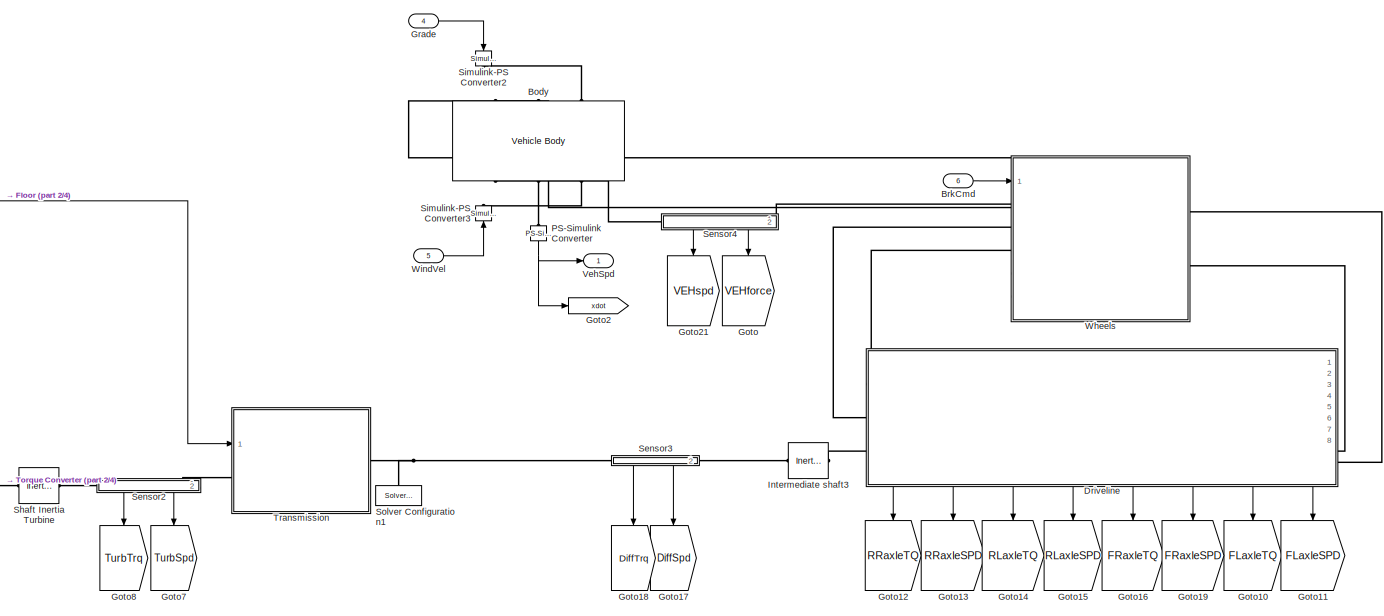
[diagram: root canvas - part 1/4, top right region]
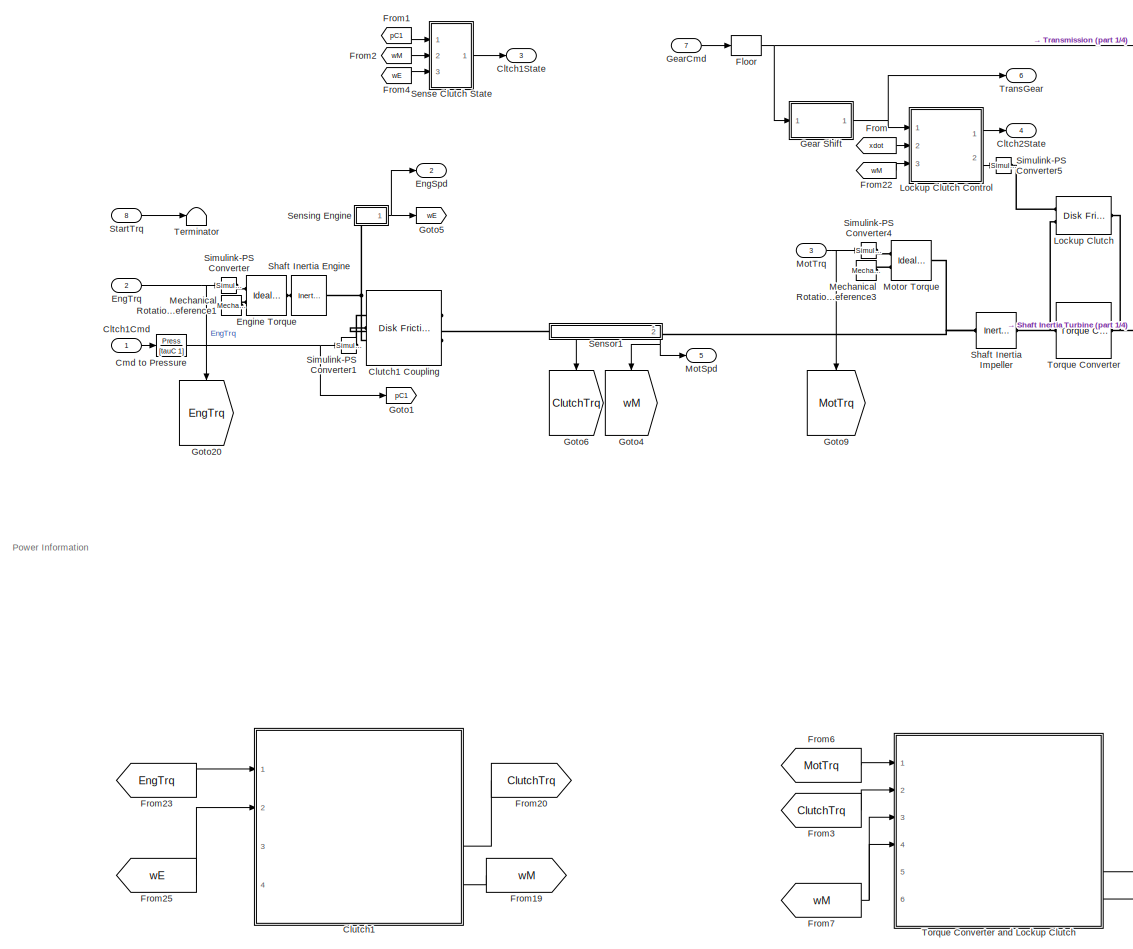
[diagram: root canvas - part 2/4, middle left region]
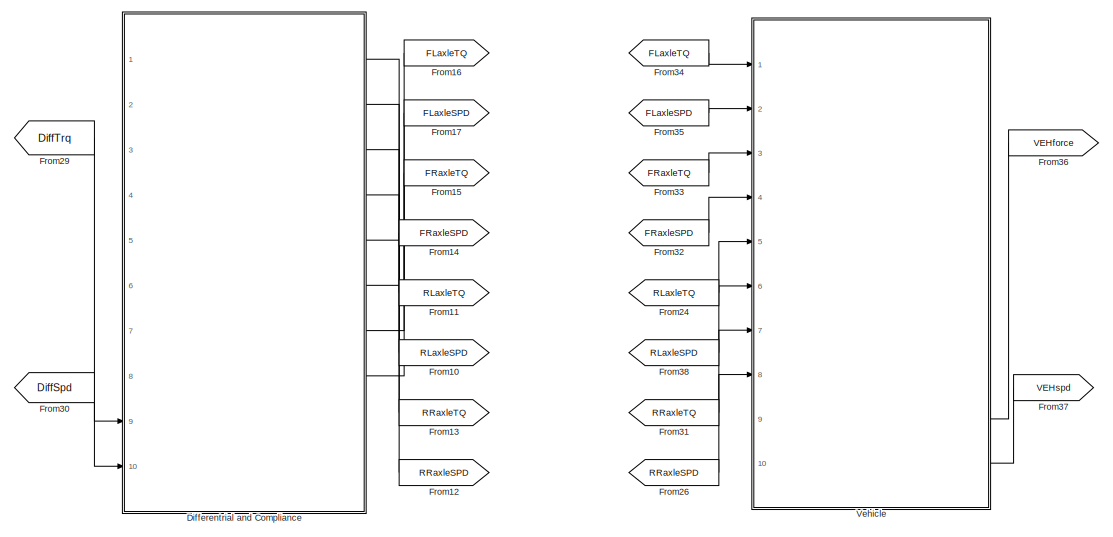
[diagram: root canvas - part 3/4, bottom right region]
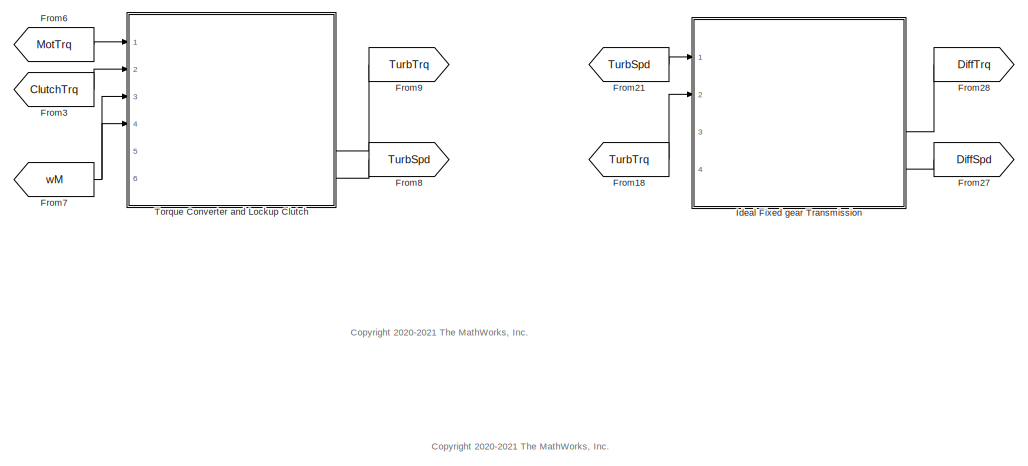
[diagram: root canvas - part 4/4, bottom center region]
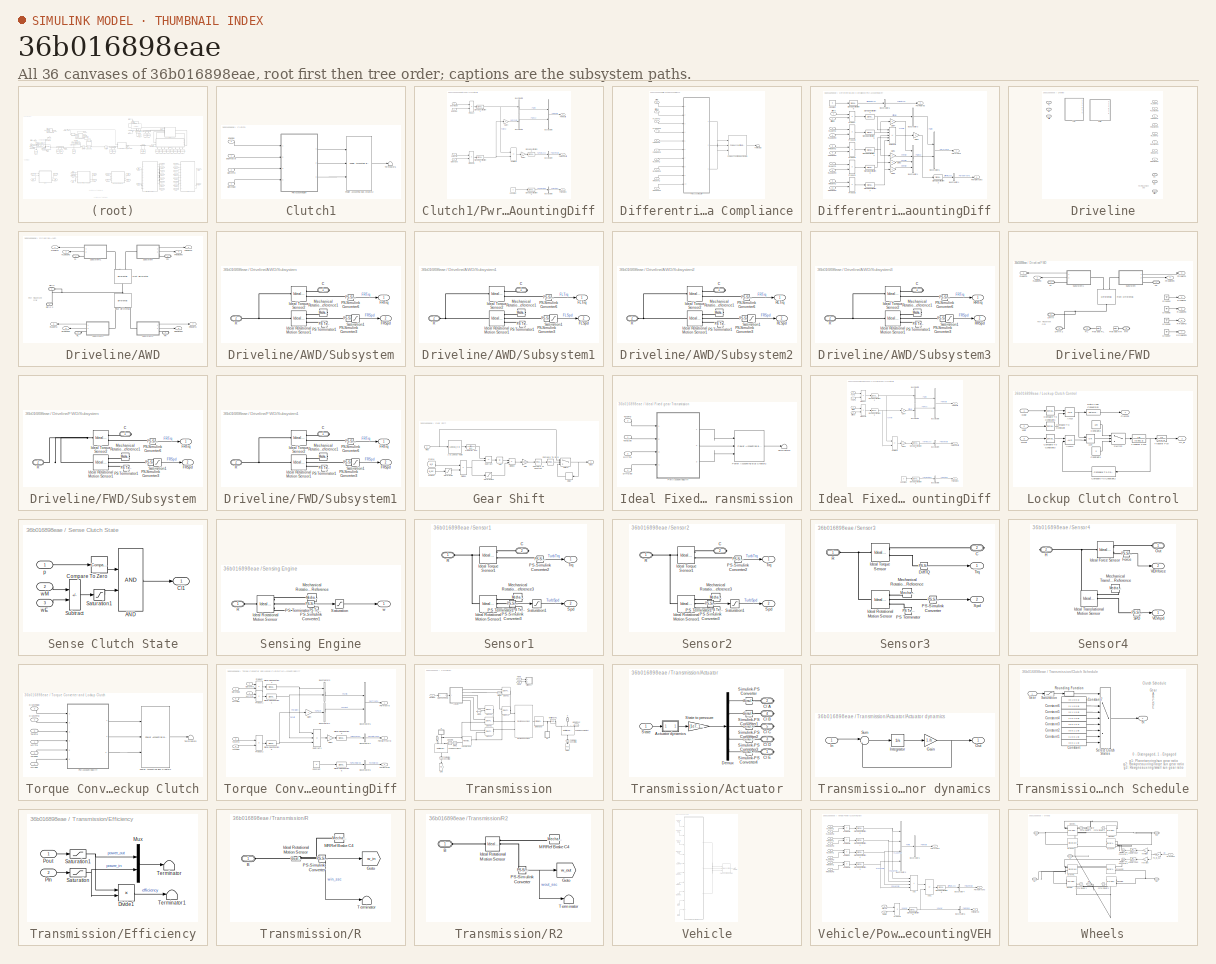
[diagram: thumbnail index - all 36 canvases of the model, root first then tree order]
MODEL slx_36b016898eae
KIND model
CONFIG AbsTol = auto
CONFIG EnableMultiTasking = off
CONFIG FixedStep = auto
CONFIG MaxStep = auto
CONFIG MinStep = auto
CONFIG RelTol = 1e-3
CONFIG SampleTimeConstraint = Unconstrained
CONFIG SolverName = daessc
CONFIG StartTime = 0.0
CONFIG StopTime = 100
WORKSPACE source: mxarray member
WORKSPACE Aeff = 0.0314159265359
WORKSPACE Af = 2.27
WORKSPACE Apist_C0 = 0.0314159265359
WORKSPACE Apist_TCC = 0.001
WORKSPACE Bx = 10
WORKSPACE Cd = 0.25
WORKSPACE CoulFr_ShaftIn = 0
WORKSPACE Cx = 1.9
WORKSPACE DensAir = 1.293
WORKSPACE DerFac_C0 = 1
WORKSPACE DerFac_TCC = 1
WORKSPACE Drag_C0 = 0
WORKSPACE Drag_TCC = 0
WORKSPACE Dx = 1
WORKSPACE Eff_Diff = [0.98 0.98]
WORKSPACE Ex = 0.97
WORKSPACE FDrive = 3.32
WORKSPACE FZMAX = 6570
WORKSPACE FZMIN = 0
WORKSPACE G = [0 1 2 3 4 5 6]
WORKSPACE G_o = 1
WORKSPACE Iyy = 0.8
WORKSPACE Iyy_Whl = 0.8
WORKSPACE JCa_Diff = 0.001
WORKSPACE JEng = 0.01
WORKSPACE JMot = 0.21
WORKSPACE JPl_Diff = 0.001
WORKSPACE JShIn = 1e-05
WORKSPACE JShOut = 0.15
WORKSPACE Jd = 0.025
WORKSPACE Ji = 0.21
WORKSPACE Jin_Cltch = 0.2
WORKSPACE Jout = [0.009 0.01 0.01 0.01 0.01 0.01 0.01]
WORKSPACE Jout_Cltch = 0.01
WORKSPACE Jt = 0.01
WORKSPACE Jw1 = 0.01
WORKSPACE Jw2 = 0.01
WORKSPACE K_c = 10000
WORKSPACE KinFr_C0 = 0.4
WORKSPACE KinFr_TCC = 0.3
WORKSPACE Lrel = 0.15
WORKSPACE Mass = 1623
WORKSPACE N = [0.001 4.212 2.637 1.8 1.386 1 0.772]
WORKSPACE NF = 2
WORKSPACE NR = 2
WORKSPACE Ndiff = 3.32
WORKSPACE Ndisk = 1
WORKSPACE Neff_C0 = 1
WORKSPACE Neff_TCC = 6
WORKSPACE PEng_C0 = 30000
WORKSPACE PEng_TCC = 100
WORKSPACE Pabs = 101325
WORKSPACE Press = 300000
WORKSPACE PwrThr_Diff = [0.001 0.001]
WORKSPACE RatFr_ShaftIn = 1.1
WORKSPACE Re = 0.327
WORKSPACE Reff = 0.11
WORKSPACE Reff_C0 = 0.11
WORKSPACE Reff_TCC = 130
WORKSPACE Rm = 0.15
WORKSPACE SprStff_ShaftIn = 10000
WORKSPACE StatFr_C0 = 0.45
WORKSPACE StatFr_TCC = 0.35
WORKSPACE T = 273
WORKSPACE Temp_bpts = [313 358]
WORKSPACE Trq_bpts = [25 50 75 100 150 200 250]
WORKSPACE UNLOADED_RADIUS = 0.336
WORKSPACE VXLOW = 2
WORKSPACE VisFr_Diff = [0.001 0.001]
WORKSPACE ViscFr_ShaftIn = 400
WORKSPACE aMy = 0.01
WORKSPACE a_CG = 1.09
WORKSPACE alphaMy = 0
WORKSPACE b: Simulink.Parameter (value not decoded)
WORKSPACE bMy = 0
WORKSPACE b_CG = 1.7
WORKSPACE bd = 0.001
WORKSPACE betaMy = 1
WORKSPACE bi = 0.001
WORKSPACE bin_Cltch = 0.003
WORKSPACE bout = [0.003 0.003 0.003 0.003 0.003 0.003 0.003]
WORKSPACE bout_Cltch = 0.003
WORKSPACE br = 0.001
WORKSPACE bt = 0.001
WORKSPACE bw1 = 0.001
WORKSPACE bw2 = 0.001
WORKSPACE cMy = 0
WORKSPACE disk_abore = 0.05
WORKSPACE domega_o = 0
WORKSPACE eta = [0.95 0.95 0.95 0.95 0.95 0.95 0.95]
WORKSPACE eta_diff = 0.98
WORKSPACE eta_tbl = [1 1 1 1 1 1 1 1 1 1 1 1 ... (1078 elements, 7x11x7x2)]
WORKSPACE g = 9.81
WORKSPACE h = 0.5
WORKSPACE k: Simulink.Parameter (value not decoded)
WORKSPACE kappamax = 1.5
WORKSPACE lam_x = 1
WORKSPACE mu_kinetic = 0.35
WORKSPACE mu_static = 0.45
WORKSPACE muk = 0.4
WORKSPACE mus = 0.45
WORKSPACE num_pads = 2
WORKSPACE omega_bpts = [500.383141081 749.619781963 1002.67614148 1250.9578527 1499.23956393 1747.52127515 1995.80298637 2501.9157054 2998.47912785 4001.15526933 5003.83141081]
WORKSPACE omega_c: Simulink.Parameter (value not decoded)
WORKSPACE omega_o = 0
WORKSPACE omegai_o = 0
WORKSPACE omegal = 94.2477796077
WORKSPACE omegao = 0
WORKSPACE omegat_o = 0
WORKSPACE omegau = 83.7758040957
WORKSPACE omegaw1o = 0
WORKSPACE omegaw2o = 0
WORKSPACE phi = [0 0.5 0.6 0.7 0.8 0.87 0.92 0.94 0.96 0.97]
WORKSPACE phi_new = [0 0.5 0.6 0.7 0.8 0.87 0.92 0.94 0.96 0.97 0.99 1.02 ... (16 elements, 1x16)]
WORKSPACE philu = 0.85
WORKSPACE press = 700000
WORKSPACE psi = [12.2938 12.8588 13.1452 13.6285 14.6163 16.2675 19.3503 22.1046 29.9986 50]
WORKSPACE psi_new = [12.2938 12.8588 13.1452 13.6285 14.6163 16.2675 19.3503 22.1046 29.9986 50 48 41.76 ... (16 elements, 1x16)]
WORKSPACE tauC = 0.25
WORKSPACE tauTC = 0.1
WORKSPACE tau_s = 0.1
WORKSPACE theta_o = 0
WORKSPACE wc = 10
WORKSPACE win_o = 0
WORKSPACE wout_o = 0
WORKSPACE x_o = 0
WORKSPACE xdot_o = 0
WORKSPACE zeta = [2.232 1.5462 1.4058 1.2746 1.1528 1.0732 1.0192 0.9983 0.9983 0.9983]
WORKSPACE zeta_new = [2.232 1.5462 1.4058 1.2746 1.1528 1.0732 1.0192 0.9983 0.9983 0.9983 0.979797979798 1.04382929642 ... (16 elements, 1x16)]
BLOCK [Reference] Body  REF=sdl_lib/Tires & Vehicles/Vehicle Body
  NameLocation = left
  Ports = [0, 0, 0, 0, 0, 3, 3]
  SourceBlock = sdl_lib/Tires & Vehicles/Vehicle Body
  SourceProductBaseCode = LD
  SourceType = Vehicle Body
BLOCK [Inport] BrkCmd
  Port = 6
BLOCK [Inport] Cltch1Cmd
BLOCK [Outport] Cltch1State
  Port = 3
BLOCK [Outport] Cltch2State
  Port = 4
BLOCK [SubSystem] Clutch1
  PortSchema = {"entries":[{"content":{"sides":[{"content":{"connectorIds":["In1","In2"]},"type":"ConnectorPlacement.EquallySpacedRectSide","uuid":"b1f27cde-2e17-46f8-a7c4-32a68f2cd5d0"},{"content":{"connectorIds":["In3","In4"],"side":"RIGHT"},"type":"ConnectorPlacement.EquallySpacedRectSide","uuid":"70f35508-9ee6-485d-898d-124f5b027daa"},{"content":{"connectorIds":[],"side":"TOP"},"type":"ConnectorPlacement.Equ...<+251ch>
  Ports = [4]
  RequestExecContextInheritance = off
BLOCK [Reference] Clutch1 Coupling  REF=sdl_lib/Clutches/Disk Friction Clutch
  Ports = [0, 0, 0, 0, 0, 2, 1]
  SourceBlock = sdl_lib/Clutches/Disk Friction Clutch
  SourceProductBaseCode = LD
  SourceType = Disk Friction Clutch
BLOCK [Inport] Clutch1/ClutchSpd
  Port = 4
BLOCK [Inport] Clutch1/ClutchTrq
  Port = 3
BLOCK [Inport] Clutch1/EngSpd
  Port = 2
BLOCK [Inport] Clutch1/EngTrqOut
BLOCK [Reference] Clutch1/Power Accounting Bus Creator2  REF=autolibpowerinfoutils/Power Accounting Bus Creator
  Ports = [3, 1]
  SourceBlock = autolibpowerinfoutils/Power Accounting Bus Creator
  SourceProductBaseCode = PW,DR,MT,VE
  SourceType = Power Accounting Bus Creator
BLOCK [SubSystem] Clutch1/PwrAccountingDiff
  Ports = [4, 3]
  RequestExecContextInheritance = off
BLOCK [BusCreator] Clutch1/PwrAccountingDiff/BusCreator1
  DisplayOption = bar
  InheritFromInputs = on
  Inputs = 1
  Ports = [1, 1]
BLOCK [BusCreator] Clutch1/PwrAccountingDiff/BusCreator3
  DisplayOption = bar
  InheritFromInputs = on
  Inputs = 1
  Ports = [1, 1]
BLOCK [BusCreator] Clutch1/PwrAccountingDiff/BusCreator4
  DisplayOption = bar
  InheritFromInputs = on
  Inputs = 1
  Ports = [1, 1]
BLOCK [BusCreator] Clutch1/PwrAccountingDiff/BusCreator5
  DisplayOption = bar
  InheritFromInputs = on
  Inputs = 2
  Ports = [2, 1]
BLOCK [BusCreator] Clutch1/PwrAccountingDiff/BusCreator6
  DisplayOption = bar
  InheritFromInputs = on
  Inputs = 1
  Ports = [1, 1]
BLOCK [Inport] Clutch1/PwrAccountingDiff/ClutchSpd
  Port = 4
BLOCK [Constant] Clutch1/PwrAccountingDiff/Constant
  Value = 0
BLOCK [Inport] Clutch1/PwrAccountingDiff/CutchTrq
  Port = 3
BLOCK [Inport] Clutch1/PwrAccountingDiff/EngSpd
BLOCK [Inport] Clutch1/PwrAccountingDiff/EngTrqOut
  Port = 2
BLOCK [Gain] Clutch1/PwrAccountingDiff/Gain3
  Gain = -1
BLOCK [Gain] Clutch1/PwrAccountingDiff/Gain4
  Gain = -1
BLOCK [Outport] Clutch1/PwrAccountingDiff/PWRstored
  Port = 3
BLOCK [Product] Clutch1/PwrAccountingDiff/Product
  Ports = [2, 1]
BLOCK [Product] Clutch1/PwrAccountingDiff/Product2
  Ports = [2, 1]
BLOCK [Outport] Clutch1/PwrAccountingDiff/PwrNotTrnsfrd
  Port = 2
BLOCK [Outport] Clutch1/PwrAccountingDiff/PwrTrnsfrd
BLOCK [SignalSpecification] Clutch1/PwrAccountingDiff/Signal Specification2
  Unit = W
BLOCK [SignalSpecification] Clutch1/PwrAccountingDiff/Signal Specification4
  Unit = W
BLOCK [SignalSpecification] Clutch1/PwrAccountingDiff/Signal Specification5
  Unit = W
BLOCK [SignalSpecification] Clutch1/PwrAccountingDiff/Signal Specification6
  Unit = W
BLOCK [Sum] Clutch1/PwrAccountingDiff/Subtract1
  IconShape = rectangular
  Inputs = +-
  Ports = [2, 1]
BLOCK [Terminator] Clutch1/Terminator5
BLOCK [TransferFcn] Cmd to Pressure
  Denominator = [tauC 1]
  Numerator = Press
BLOCK [SubSystem] Differentrial and Compliance
  PortSchema = {"entries":[{"content":{"sides":[{"content":{"connectorIds":["In1","In2","In3","In4","In5","In6","In7","In8"]},"type":"ConnectorPlacement.EquallySpacedRectSide","uuid":"bcf9a296-e69e-4ad9-a4a1-d979ea5df84c"},{"content":{"connectorIds":["In9","In10"],"side":"RIGHT"},"type":"ConnectorPlacement.EquallySpacedRectSide","uuid":"3e14b290-259b-4f68-a20c-650572254037"},{"content":{"connectorIds":[],"side":...<+288ch>
  Ports = [10]
  RequestExecContextInheritance = off
BLOCK [Inport] Differentrial and Compliance/DiffSpd
  Port = 9
BLOCK [Inport] Differentrial and Compliance/DiffTrq
  Port = 10
BLOCK [Inport] Differentrial and Compliance/FLaxleSPD
  Port = 7
BLOCK [Inport] Differentrial and Compliance/FLaxleTQ
  Port = 8
BLOCK [Inport] Differentrial and Compliance/FRaxleSPD
  Port = 5
BLOCK [Inport] Differentrial and Compliance/FRaxleTQ
  Port = 6
BLOCK [Reference] Differentrial and Compliance/Power Accounting Bus Creator1  REF=autolibpowerinfoutils/Power Accounting Bus Creator
  Ports = [3, 1]
  SourceBlock = autolibpowerinfoutils/Power Accounting Bus Creator
  SourceProductBaseCode = PW,DR,MT,VE
  SourceType = Power Accounting Bus Creator
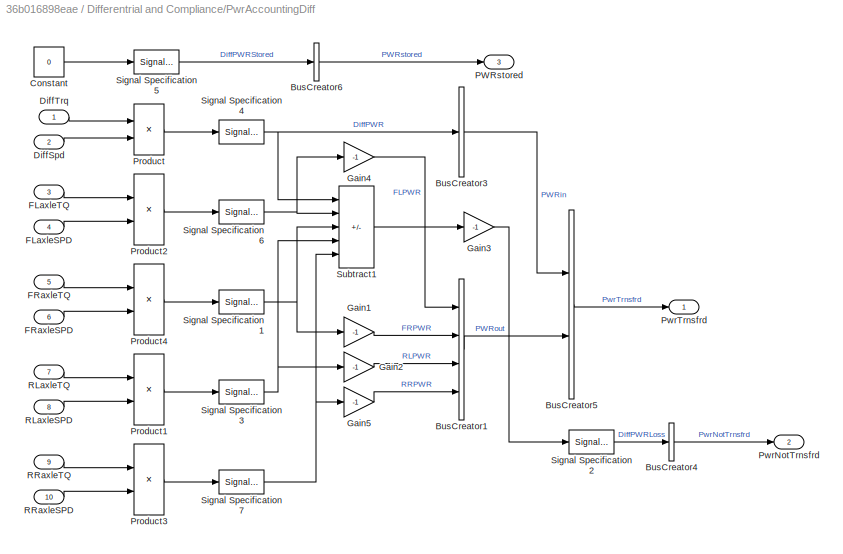
BLOCK [SubSystem] Differentrial and Compliance/PwrAccountingDiff
  Ports = [10, 3]
  RequestExecContextInheritance = off
BLOCK [BusCreator] Differentrial and Compliance/PwrAccountingDiff/BusCreator1
  DisplayOption = bar
  InheritFromInputs = on
  Inputs = 4
  Ports = [4, 1]
BLOCK [BusCreator] Differentrial and Compliance/PwrAccountingDiff/BusCreator3
  DisplayOption = bar
  InheritFromInputs = on
  Inputs = 1
  Ports = [1, 1]
BLOCK [BusCreator] Differentrial and Compliance/PwrAccountingDiff/BusCreator4
  DisplayOption = bar
  InheritFromInputs = on
  Inputs = 1
  Ports = [1, 1]
BLOCK [BusCreator] Differentrial and Compliance/PwrAccountingDiff/BusCreator5
  DisplayOption = bar
  InheritFromInputs = on
  Inputs = 2
  Ports = [2, 1]
BLOCK [BusCreator] Differentrial and Compliance/PwrAccountingDiff/BusCreator6
  DisplayOption = bar
  InheritFromInputs = on
  Inputs = 1
  Ports = [1, 1]
BLOCK [Constant] Differentrial and Compliance/PwrAccountingDiff/Constant
  Value = 0
BLOCK [Inport] Differentrial and Compliance/PwrAccountingDiff/DiffSpd
  Port = 2
BLOCK [Inport] Differentrial and Compliance/PwrAccountingDiff/DiffTrq
BLOCK [Inport] Differentrial and Compliance/PwrAccountingDiff/FLaxleSPD
  Port = 4
BLOCK [Inport] Differentrial and Compliance/PwrAccountingDiff/FLaxleTQ
  Port = 3
BLOCK [Inport] Differentrial and Compliance/PwrAccountingDiff/FRaxleSPD
  Port = 6
BLOCK [Inport] Differentrial and Compliance/PwrAccountingDiff/FRaxleTQ
  Port = 5
BLOCK [Gain] Differentrial and Compliance/PwrAccountingDiff/Gain1
  Gain = -1
BLOCK [Gain] Differentrial and Compliance/PwrAccountingDiff/Gain2
  Gain = -1
BLOCK [Gain] Differentrial and Compliance/PwrAccountingDiff/Gain3
  Gain = -1
BLOCK [Gain] Differentrial and Compliance/PwrAccountingDiff/Gain4
  Gain = -1
BLOCK [Gain] Differentrial and Compliance/PwrAccountingDiff/Gain5
  Gain = -1
BLOCK [Outport] Differentrial and Compliance/PwrAccountingDiff/PWRstored
  Port = 3
BLOCK [Product] Differentrial and Compliance/PwrAccountingDiff/Product
  Ports = [2, 1]
BLOCK [Product] Differentrial and Compliance/PwrAccountingDiff/Product1
  Ports = [2, 1]
BLOCK [Product] Differentrial and Compliance/PwrAccountingDiff/Product2
  Ports = [2, 1]
BLOCK [Product] Differentrial and Compliance/PwrAccountingDiff/Product3
  Ports = [2, 1]
BLOCK [Product] Differentrial and Compliance/PwrAccountingDiff/Product4
  Ports = [2, 1]
BLOCK [Outport] Differentrial and Compliance/PwrAccountingDiff/PwrNotTrnsfrd
  Port = 2
BLOCK [Outport] Differentrial and Compliance/PwrAccountingDiff/PwrTrnsfrd
BLOCK [Inport] Differentrial and Compliance/PwrAccountingDiff/RLaxleSPD
  Port = 8
BLOCK [Inport] Differentrial and Compliance/PwrAccountingDiff/RLaxleTQ
  Port = 7
BLOCK [Inport] Differentrial and Compliance/PwrAccountingDiff/RRaxleSPD
  Port = 10
BLOCK [Inport] Differentrial and Compliance/PwrAccountingDiff/RRaxleTQ
  Port = 9
BLOCK [SignalSpecification] Differentrial and Compliance/PwrAccountingDiff/Signal Specification1
  Unit = W
BLOCK [SignalSpecification] Differentrial and Compliance/PwrAccountingDiff/Signal Specification2
  Unit = W
BLOCK [SignalSpecification] Differentrial and Compliance/PwrAccountingDiff/Signal Specification3
  Unit = W
BLOCK [SignalSpecification] Differentrial and Compliance/PwrAccountingDiff/Signal Specification4
  Unit = W
BLOCK [SignalSpecification] Differentrial and Compliance/PwrAccountingDiff/Signal Specification5
  Unit = W
BLOCK [SignalSpecification] Differentrial and Compliance/PwrAccountingDiff/Signal Specification6
  Unit = W
BLOCK [SignalSpecification] Differentrial and Compliance/PwrAccountingDiff/Signal Specification7
  Unit = W
BLOCK [Sum] Differentrial and Compliance/PwrAccountingDiff/Subtract1
  IconShape = rectangular
  Inputs = +----
  Ports = [5, 1]
BLOCK [Inport] Differentrial and Compliance/RLaxleSPD
  Port = 3
BLOCK [Inport] Differentrial and Compliance/RLaxleTQ
  Port = 4
BLOCK [Inport] Differentrial and Compliance/RRaxleSPD
BLOCK [Inport] Differentrial and Compliance/RRaxleTQ
  Port = 2
BLOCK [Terminator] Differentrial and Compliance/Terminator2
BLOCK [SubSystem] Driveline
  LabelModeActiveChoice = 0
  PortSchema = {"entries":[{"content":{"sides":[{"content":{"connectorIds":["LConn1","LConn2","LConn3"]},"type":"ConnectorPlacement.EquallySpacedRectSide","uuid":"3325a319-6891-4d39-8d21-7416d4c1f1ff"},{"content":{"connectorIds":["RConn1","RConn2","RConn3"],"side":"RIGHT"},"type":"ConnectorPlacement.EquallySpacedRectSide","uuid":"52982dc3-965b-4ff3-b638-3f35e75026a2"},{"content":{"connectorIds":[],"side":"TOP"},...<+480ch>
  Ports = [0, 8, 0, 0, 0, 3, 3]
  RequestExecContextInheritance = off
  Variant = on
  VariantControl = Choice
  VariantControlMode = label
BLOCK [SubSystem] Driveline/AWD
  Ports = [0, 8, 0, 0, 0, 3, 3]
  RequestExecContextInheritance = off
  VariantControl = 2
BLOCK [PMIOPort] Driveline/AWD/DiffIn
  Port = 3
  Side = Left
BLOCK [PMIOPort] Driveline/AWD/DiffIn 2
  Port = 6
  Side = Right
BLOCK [PMIOPort] Driveline/AWD/FL
  Side = Left
BLOCK [Outport] Driveline/AWD/FLaxleSPD
  Port = 2
BLOCK [Outport] Driveline/AWD/FLaxleTQ
BLOCK [PMIOPort] Driveline/AWD/FR
  Port = 4
  Side = Right
BLOCK [Outport] Driveline/AWD/FRaxleSPD
  Port = 4
BLOCK [Outport] Driveline/AWD/FRaxleTQ
  Port = 3
BLOCK [Reference] Driveline/AWD/Front Differential  REF=sdl_lib/Gears/Differential
  NameLocation = right
  Ports = [0, 0, 0, 0, 0, 1, 2]
  SourceBlock = sdl_lib/Gears/Differential
  SourceProductBaseCode = LD
  SourceType = Differential
BLOCK [PMIOPort] Driveline/AWD/RL
  Port = 2
  Side = Left
BLOCK [Outport] Driveline/AWD/RLaxleSPD
  Port = 6
BLOCK [Outport] Driveline/AWD/RLaxleTQ
  Port = 5
BLOCK [PMIOPort] Driveline/AWD/RR
  Port = 5
  Side = Right
BLOCK [Outport] Driveline/AWD/RRaxleSPD
  Port = 8
BLOCK [Outport] Driveline/AWD/RRaxleTQ
  Port = 7
BLOCK [Reference] Driveline/AWD/Rear Differential  REF=sdl_lib/Gears/Differential
  NameLocation = right
  Ports = [0, 0, 0, 0, 0, 1, 2]
  SourceBlock = sdl_lib/Gears/Differential
  SourceProductBaseCode = LD
  SourceType = Differential
BLOCK [SubSystem] Driveline/AWD/Subsystem
  Ports = [0, 2, 0, 0, 0, 1, 1]
  RequestExecContextInheritance = off
BLOCK [PMIOPort] Driveline/AWD/Subsystem/C
  Side = Right
BLOCK [Outport] Driveline/AWD/Subsystem/FRSpd
  Port = 2
BLOCK [Outport] Driveline/AWD/Subsystem/FRTrq
BLOCK [Reference] Driveline/AWD/Subsystem/Ideal Rotational Motion Sensor1  REF=fl_lib/Mechanical/Mechanical Sensors/Ideal Rotational
Motion Sensor
  Ports = [0, 0, 0, 0, 0, 1, 3]
  SourceBlock = fl_lib/Mechanical/Mechanical Sensors/Ideal Rotational\nMotion Sensor
  SourceProductBaseCode = PW,SS,VE
  SourceType = Ideal Rotational\nMotion Sensor
BLOCK [Reference] Driveline/AWD/Subsystem/Ideal Torque Sensor2  REF=fl_lib/Mechanical/Mechanical Sensors/Ideal Torque Sensor
  Ports = [0, 0, 0, 0, 0, 1, 2]
  SourceBlock = fl_lib/Mechanical/Mechanical Sensors/Ideal Torque Sensor
  SourceProductBaseCode = PW,SS,VE
  SourceType = Ideal Torque Sensor
BLOCK [Reference] Driveline/AWD/Subsystem/Mechanical Rotational Reference1  REF=fl_lib/Mechanical/Rotational Elements/Mechanical
Rotational Reference
  NameLocation = top
  Ports = [0, 0, 0, 0, 0, 1]
  SourceBlock = fl_lib/Mechanical/Rotational Elements/Mechanical\nRotational Reference
  SourceProductBaseCode = PW,SS,VE
  SourceType = Mechanical\nRotational Reference
BLOCK [Reference] Driveline/AWD/Subsystem/PS Terminator1  REF=fl_lib/Physical Signals/Sinks/PS Terminator
  Ports = [0, 0, 0, 0, 0, 1]
  SourceBlock = fl_lib/Physical Signals/Sinks/PS Terminator
  SourceProductBaseCode = PW,SS,VE
  SourceType = PS Terminator
BLOCK [Reference] Driveline/AWD/Subsystem/PS-Simulink Converter3  REF=nesl_utility/PS-Simulink
Converter
  Ports = [0, 1, 0, 0, 0, 1]
  SourceBlock = nesl_utility/PS-Simulink\nConverter
  SourceProductBaseCode = SS,PW,VE
  SourceType = PS-Simulink\nConverter
BLOCK [Reference] Driveline/AWD/Subsystem/PS-Simulink Converter6  REF=nesl_utility/PS-Simulink
Converter
  Ports = [0, 1, 0, 0, 0, 1]
  SourceBlock = nesl_utility/PS-Simulink\nConverter
  SourceProductBaseCode = SS,PW,VE
  SourceType = PS-Simulink\nConverter
BLOCK [PMIOPort] Driveline/AWD/Subsystem/R
  Port = 2
  Side = Left
BLOCK [Saturate] Driveline/AWD/Subsystem/Saturation1
  LowerLimit = eps
  UpperLimit = inf
  ZeroCross = off
BLOCK [SubSystem] Driveline/AWD/Subsystem1
  NameLocation = top
  Ports = [0, 2, 0, 0, 0, 1, 1]
  RequestExecContextInheritance = off
BLOCK [PMIOPort] Driveline/AWD/Subsystem1/C
  Side = Right
BLOCK [Outport] Driveline/AWD/Subsystem1/FLSpd
  Port = 2
BLOCK [Outport] Driveline/AWD/Subsystem1/FLTrq
BLOCK [Reference] Driveline/AWD/Subsystem1/Ideal Rotational Motion Sensor1  REF=fl_lib/Mechanical/Mechanical Sensors/Ideal Rotational
Motion Sensor
  Ports = [0, 0, 0, 0, 0, 1, 3]
  SourceBlock = fl_lib/Mechanical/Mechanical Sensors/Ideal Rotational\nMotion Sensor
  SourceProductBaseCode = PW,SS,VE
  SourceType = Ideal Rotational\nMotion Sensor
BLOCK [Reference] Driveline/AWD/Subsystem1/Ideal Torque Sensor2  REF=fl_lib/Mechanical/Mechanical Sensors/Ideal Torque Sensor
  Ports = [0, 0, 0, 0, 0, 1, 2]
  SourceBlock = fl_lib/Mechanical/Mechanical Sensors/Ideal Torque Sensor
  SourceProductBaseCode = PW,SS,VE
  SourceType = Ideal Torque Sensor
BLOCK [Reference] Driveline/AWD/Subsystem1/Mechanical Rotational Reference1  REF=fl_lib/Mechanical/Rotational Elements/Mechanical
Rotational Reference
  NameLocation = top
  Ports = [0, 0, 0, 0, 0, 1]
  SourceBlock = fl_lib/Mechanical/Rotational Elements/Mechanical\nRotational Reference
  SourceProductBaseCode = PW,SS,VE
  SourceType = Mechanical\nRotational Reference
BLOCK [Reference] Driveline/AWD/Subsystem1/PS Terminator1  REF=fl_lib/Physical Signals/Sinks/PS Terminator
  Ports = [0, 0, 0, 0, 0, 1]
  SourceBlock = fl_lib/Physical Signals/Sinks/PS Terminator
  SourceProductBaseCode = PW,SS,VE
  SourceType = PS Terminator
BLOCK [Reference] Driveline/AWD/Subsystem1/PS-Simulink Converter3  REF=nesl_utility/PS-Simulink
Converter
  Ports = [0, 1, 0, 0, 0, 1]
  SourceBlock = nesl_utility/PS-Simulink\nConverter
  SourceProductBaseCode = SS,PW,VE
  SourceType = PS-Simulink\nConverter
BLOCK [Reference] Driveline/AWD/Subsystem1/PS-Simulink Converter6  REF=nesl_utility/PS-Simulink
Converter
  Ports = [0, 1, 0, 0, 0, 1]
  SourceBlock = nesl_utility/PS-Simulink\nConverter
  SourceProductBaseCode = SS,PW,VE
  SourceType = PS-Simulink\nConverter
BLOCK [PMIOPort] Driveline/AWD/Subsystem1/R
  Port = 2
  Side = Left
BLOCK [Saturate] Driveline/AWD/Subsystem1/Saturation1
  LowerLimit = eps
  UpperLimit = inf
  ZeroCross = off
BLOCK [SubSystem] Driveline/AWD/Subsystem2
  NameLocation = top
  Ports = [0, 2, 0, 0, 0, 1, 1]
  RequestExecContextInheritance = off
BLOCK [PMIOPort] Driveline/AWD/Subsystem2/C
  Side = Right
BLOCK [Reference] Driveline/AWD/Subsystem2/Ideal Rotational Motion Sensor1  REF=fl_lib/Mechanical/Mechanical Sensors/Ideal Rotational
Motion Sensor
  Ports = [0, 0, 0, 0, 0, 1, 3]
  SourceBlock = fl_lib/Mechanical/Mechanical Sensors/Ideal Rotational\nMotion Sensor
  SourceProductBaseCode = PW,SS,VE
  SourceType = Ideal Rotational\nMotion Sensor
BLOCK [Reference] Driveline/AWD/Subsystem2/Ideal Torque Sensor2  REF=fl_lib/Mechanical/Mechanical Sensors/Ideal Torque Sensor
  Ports = [0, 0, 0, 0, 0, 1, 2]
  SourceBlock = fl_lib/Mechanical/Mechanical Sensors/Ideal Torque Sensor
  SourceProductBaseCode = PW,SS,VE
  SourceType = Ideal Torque Sensor
BLOCK [Reference] Driveline/AWD/Subsystem2/Mechanical Rotational Reference1  REF=fl_lib/Mechanical/Rotational Elements/Mechanical
Rotational Reference
  NameLocation = top
  Ports = [0, 0, 0, 0, 0, 1]
  SourceBlock = fl_lib/Mechanical/Rotational Elements/Mechanical\nRotational Reference
  SourceProductBaseCode = PW,SS,VE
  SourceType = Mechanical\nRotational Reference
BLOCK [Reference] Driveline/AWD/Subsystem2/PS Terminator1  REF=fl_lib/Physical Signals/Sinks/PS Terminator
  Ports = [0, 0, 0, 0, 0, 1]
  SourceBlock = fl_lib/Physical Signals/Sinks/PS Terminator
  SourceProductBaseCode = PW,SS,VE
  SourceType = PS Terminator
BLOCK [Reference] Driveline/AWD/Subsystem2/PS-Simulink Converter3  REF=nesl_utility/PS-Simulink
Converter
  Ports = [0, 1, 0, 0, 0, 1]
  SourceBlock = nesl_utility/PS-Simulink\nConverter
  SourceProductBaseCode = SS,PW,VE
  SourceType = PS-Simulink\nConverter
BLOCK [Reference] Driveline/AWD/Subsystem2/PS-Simulink Converter6  REF=nesl_utility/PS-Simulink
Converter
  Ports = [0, 1, 0, 0, 0, 1]
  SourceBlock = nesl_utility/PS-Simulink\nConverter
  SourceProductBaseCode = SS,PW,VE
  SourceType = PS-Simulink\nConverter
BLOCK [PMIOPort] Driveline/AWD/Subsystem2/R
  Port = 2
  Side = Left
BLOCK [Outport] Driveline/AWD/Subsystem2/RLSpd
  Port = 2
BLOCK [Outport] Driveline/AWD/Subsystem2/RLTrq
BLOCK [Saturate] Driveline/AWD/Subsystem2/Saturation1
  LowerLimit = eps
  UpperLimit = inf
  ZeroCross = off
BLOCK [SubSystem] Driveline/AWD/Subsystem3
  Ports = [0, 2, 0, 0, 0, 1, 1]
  RequestExecContextInheritance = off
BLOCK [PMIOPort] Driveline/AWD/Subsystem3/C
  Side = Right
BLOCK [Reference] Driveline/AWD/Subsystem3/Ideal Rotational Motion Sensor1  REF=fl_lib/Mechanical/Mechanical Sensors/Ideal Rotational
Motion Sensor
  Ports = [0, 0, 0, 0, 0, 1, 3]
  SourceBlock = fl_lib/Mechanical/Mechanical Sensors/Ideal Rotational\nMotion Sensor
  SourceProductBaseCode = PW,SS,VE
  SourceType = Ideal Rotational\nMotion Sensor
BLOCK [Reference] Driveline/AWD/Subsystem3/Ideal Torque Sensor2  REF=fl_lib/Mechanical/Mechanical Sensors/Ideal Torque Sensor
  Ports = [0, 0, 0, 0, 0, 1, 2]
  SourceBlock = fl_lib/Mechanical/Mechanical Sensors/Ideal Torque Sensor
  SourceProductBaseCode = PW,SS,VE
  SourceType = Ideal Torque Sensor
BLOCK [Reference] Driveline/AWD/Subsystem3/Mechanical Rotational Reference1  REF=fl_lib/Mechanical/Rotational Elements/Mechanical
Rotational Reference
  NameLocation = top
  Ports = [0, 0, 0, 0, 0, 1]
  SourceBlock = fl_lib/Mechanical/Rotational Elements/Mechanical\nRotational Reference
  SourceProductBaseCode = PW,SS,VE
  SourceType = Mechanical\nRotational Reference
BLOCK [Reference] Driveline/AWD/Subsystem3/PS Terminator1  REF=fl_lib/Physical Signals/Sinks/PS Terminator
  Ports = [0, 0, 0, 0, 0, 1]
  SourceBlock = fl_lib/Physical Signals/Sinks/PS Terminator
  SourceProductBaseCode = PW,SS,VE
  SourceType = PS Terminator
BLOCK [Reference] Driveline/AWD/Subsystem3/PS-Simulink Converter3  REF=nesl_utility/PS-Simulink
Converter
  Ports = [0, 1, 0, 0, 0, 1]
  SourceBlock = nesl_utility/PS-Simulink\nConverter
  SourceProductBaseCode = SS,PW,VE
  SourceType = PS-Simulink\nConverter
BLOCK [Reference] Driveline/AWD/Subsystem3/PS-Simulink Converter6  REF=nesl_utility/PS-Simulink
Converter
  Ports = [0, 1, 0, 0, 0, 1]
  SourceBlock = nesl_utility/PS-Simulink\nConverter
  SourceProductBaseCode = SS,PW,VE
  SourceType = PS-Simulink\nConverter
BLOCK [PMIOPort] Driveline/AWD/Subsystem3/R
  Port = 2
  Side = Left
BLOCK [Outport] Driveline/AWD/Subsystem3/RRSpd
  Port = 2
BLOCK [Outport] Driveline/AWD/Subsystem3/RRTrq
BLOCK [Saturate] Driveline/AWD/Subsystem3/Saturation1
  LowerLimit = eps
  UpperLimit = inf
  ZeroCross = off
BLOCK [PMIOPort] Driveline/DiffIn
  Port = 3
  Side = Left
BLOCK [PMIOPort] Driveline/DiffIn 2
  Port = 6
  Side = Right
BLOCK [PMIOPort] Driveline/FL
  Port = 2
  Side = Left
BLOCK [Outport] Driveline/FLaxleSPD
  Port = 8
BLOCK [Outport] Driveline/FLaxleTQ
  Port = 7
BLOCK [PMIOPort] Driveline/FR
  Port = 5
  Side = Right
BLOCK [Outport] Driveline/FRaxleSPD
  Port = 6
BLOCK [Outport] Driveline/FRaxleTQ
  Port = 5
BLOCK [SubSystem] Driveline/FWD
  Ports = [0, 8, 0, 0, 0, 3, 3]
  RequestExecContextInheritance = off
  VariantControl = 0
BLOCK [PMIOPort] Driveline/FWD/DiffIn
  Port = 5
  Side = Left
BLOCK [PMIOPort] Driveline/FWD/DiffIn 2
  Port = 6
  Side = Right
BLOCK [PMIOPort] Driveline/FWD/FL
  Side = Left
BLOCK [Outport] Driveline/FWD/FLaxleSPD
  Port = 2
BLOCK [Outport] Driveline/FWD/FLaxleTQ
BLOCK [PMIOPort] Driveline/FWD/FR
  Port = 2
  Side = Right
BLOCK [Outport] Driveline/FWD/FRaxleSPD
  Port = 4
BLOCK [Outport] Driveline/FWD/FRaxleTQ
  Port = 3
BLOCK [Reference] Driveline/FWD/Free End RL  REF=fl_lib/Mechanical/Rotational Elements/Rotational Free End
  Ports = [0, 0, 0, 0, 0, 1]
  SourceBlock = fl_lib/Mechanical/Rotational Elements/Rotational Free End
  SourceProductBaseCode = PW,SS,VE
  SourceType = Rotational Free End
BLOCK [Reference] Driveline/FWD/Free End RR  REF=fl_lib/Mechanical/Rotational Elements/Rotational Free End
  Ports = [0, 0, 0, 0, 0, 1]
  SourceBlock = fl_lib/Mechanical/Rotational Elements/Rotational Free End
  SourceProductBaseCode = PW,SS,VE
  SourceType = Rotational Free End
BLOCK [Reference] Driveline/FWD/Front Differential  REF=sdl_lib/Gears/Differential
  NameLocation = right
  Ports = [0, 0, 0, 0, 0, 1, 2]
  SourceBlock = sdl_lib/Gears/Differential
  SourceProductBaseCode = LD
  SourceType = Differential
BLOCK [Ground] Driveline/FWD/Ground4
BLOCK [Ground] Driveline/FWD/Ground5
BLOCK [Ground] Driveline/FWD/Ground6
BLOCK [Ground] Driveline/FWD/Ground7
BLOCK [PMIOPort] Driveline/FWD/RL
  Port = 4
  Side = Left
BLOCK [Outport] Driveline/FWD/RLaxleSPD
  Port = 5
BLOCK [Outport] Driveline/FWD/RLaxleTQ
  Port = 6
BLOCK [PMIOPort] Driveline/FWD/RR
  Port = 3
  Side = Right
BLOCK [Outport] Driveline/FWD/RRaxleSPD
  Port = 7
BLOCK [Outport] Driveline/FWD/RRaxleTQ
  Port = 8
BLOCK [SubSystem] Driveline/FWD/Subsystem
  Ports = [0, 2, 0, 0, 0, 1, 1]
  RequestExecContextInheritance = off
BLOCK [PMIOPort] Driveline/FWD/Subsystem/C
  Side = Right
BLOCK [Outport] Driveline/FWD/Subsystem/FRSpd
  Port = 2
BLOCK [Outport] Driveline/FWD/Subsystem/FRTrq
BLOCK [Reference] Driveline/FWD/Subsystem/Ideal Rotational Motion Sensor1  REF=fl_lib/Mechanical/Mechanical Sensors/Ideal Rotational
Motion Sensor
  Ports = [0, 0, 0, 0, 0, 1, 3]
  SourceBlock = fl_lib/Mechanical/Mechanical Sensors/Ideal Rotational\nMotion Sensor
  SourceProductBaseCode = PW,SS,VE
  SourceType = Ideal Rotational\nMotion Sensor
BLOCK [Reference] Driveline/FWD/Subsystem/Ideal Torque Sensor2  REF=fl_lib/Mechanical/Mechanical Sensors/Ideal Torque Sensor
  Ports = [0, 0, 0, 0, 0, 1, 2]
  SourceBlock = fl_lib/Mechanical/Mechanical Sensors/Ideal Torque Sensor
  SourceProductBaseCode = PW,SS,VE
  SourceType = Ideal Torque Sensor
BLOCK [Reference] Driveline/FWD/Subsystem/Mechanical Rotational Reference1  REF=fl_lib/Mechanical/Rotational Elements/Mechanical
Rotational Reference
  NameLocation = top
  Ports = [0, 0, 0, 0, 0, 1]
  SourceBlock = fl_lib/Mechanical/Rotational Elements/Mechanical\nRotational Reference
  SourceProductBaseCode = PW,SS,VE
  SourceType = Mechanical\nRotational Reference
BLOCK [Reference] Driveline/FWD/Subsystem/PS Terminator1  REF=fl_lib/Physical Signals/Sinks/PS Terminator
  Ports = [0, 0, 0, 0, 0, 1]
  SourceBlock = fl_lib/Physical Signals/Sinks/PS Terminator
  SourceProductBaseCode = PW,SS,VE
  SourceType = PS Terminator
BLOCK [Reference] Driveline/FWD/Subsystem/PS-Simulink Converter3  REF=nesl_utility/PS-Simulink
Converter
  Ports = [0, 1, 0, 0, 0, 1]
  SourceBlock = nesl_utility/PS-Simulink\nConverter
  SourceProductBaseCode = SS,PW,VE
  SourceType = PS-Simulink\nConverter
BLOCK [Reference] Driveline/FWD/Subsystem/PS-Simulink Converter6  REF=nesl_utility/PS-Simulink
Converter
  Ports = [0, 1, 0, 0, 0, 1]
  SourceBlock = nesl_utility/PS-Simulink\nConverter
  SourceProductBaseCode = SS,PW,VE
  SourceType = PS-Simulink\nConverter
BLOCK [PMIOPort] Driveline/FWD/Subsystem/R
  Port = 2
  Side = Left
BLOCK [Saturate] Driveline/FWD/Subsystem/Saturation1
  LowerLimit = eps
  UpperLimit = inf
  ZeroCross = off
BLOCK [SubSystem] Driveline/FWD/Subsystem1
  NameLocation = top
  Ports = [0, 2, 0, 0, 0, 1, 1]
  RequestExecContextInheritance = off
BLOCK [PMIOPort] Driveline/FWD/Subsystem1/C
  Side = Right
BLOCK [Outport] Driveline/FWD/Subsystem1/FRSpd
  Port = 2
BLOCK [Outport] Driveline/FWD/Subsystem1/FRTrq
BLOCK [Reference] Driveline/FWD/Subsystem1/Ideal Rotational Motion Sensor1  REF=fl_lib/Mechanical/Mechanical Sensors/Ideal Rotational
Motion Sensor
  Ports = [0, 0, 0, 0, 0, 1, 3]
  SourceBlock = fl_lib/Mechanical/Mechanical Sensors/Ideal Rotational\nMotion Sensor
  SourceProductBaseCode = PW,SS,VE
  SourceType = Ideal Rotational\nMotion Sensor
BLOCK [Reference] Driveline/FWD/Subsystem1/Ideal Torque Sensor2  REF=fl_lib/Mechanical/Mechanical Sensors/Ideal Torque Sensor
  Ports = [0, 0, 0, 0, 0, 1, 2]
  SourceBlock = fl_lib/Mechanical/Mechanical Sensors/Ideal Torque Sensor
  SourceProductBaseCode = PW,SS,VE
  SourceType = Ideal Torque Sensor
BLOCK [Reference] Driveline/FWD/Subsystem1/Mechanical Rotational Reference1  REF=fl_lib/Mechanical/Rotational Elements/Mechanical
Rotational Reference
  NameLocation = top
  Ports = [0, 0, 0, 0, 0, 1]
  SourceBlock = fl_lib/Mechanical/Rotational Elements/Mechanical\nRotational Reference
  SourceProductBaseCode = PW,SS,VE
  SourceType = Mechanical\nRotational Reference
BLOCK [Reference] Driveline/FWD/Subsystem1/PS Terminator1  REF=fl_lib/Physical Signals/Sinks/PS Terminator
  Ports = [0, 0, 0, 0, 0, 1]
  SourceBlock = fl_lib/Physical Signals/Sinks/PS Terminator
  SourceProductBaseCode = PW,SS,VE
  SourceType = PS Terminator
BLOCK [Reference] Driveline/FWD/Subsystem1/PS-Simulink Converter3  REF=nesl_utility/PS-Simulink
Converter
  Ports = [0, 1, 0, 0, 0, 1]
  SourceBlock = nesl_utility/PS-Simulink\nConverter
  SourceProductBaseCode = SS,PW,VE
  SourceType = PS-Simulink\nConverter
BLOCK [Reference] Driveline/FWD/Subsystem1/PS-Simulink Converter6  REF=nesl_utility/PS-Simulink
Converter
  Ports = [0, 1, 0, 0, 0, 1]
  SourceBlock = nesl_utility/PS-Simulink\nConverter
  SourceProductBaseCode = SS,PW,VE
  SourceType = PS-Simulink\nConverter
BLOCK [PMIOPort] Driveline/FWD/Subsystem1/R
  Port = 2
  Side = Left
BLOCK [Saturate] Driveline/FWD/Subsystem1/Saturation1
  LowerLimit = eps
  UpperLimit = inf
  ZeroCross = off
BLOCK [PMIOPort] Driveline/RL
  Side = Left
BLOCK [Outport] Driveline/RLaxleSPD
  Port = 4
BLOCK [Outport] Driveline/RLaxleTQ
  Port = 3
BLOCK [PMIOPort] Driveline/RR
  Port = 4
  Side = Right
BLOCK [Outport] Driveline/RRaxleSPD
  Port = 2
BLOCK [Outport] Driveline/RRaxleTQ
BLOCK [Outport] EngSpd
  Port = 2
BLOCK [Inport] EngTrq
  Port = 2
BLOCK [Reference] Engine Torque  REF=fl_lib/Mechanical/Mechanical Sources/Ideal Torque Source
  NameLocation = top
  Ports = [0, 0, 0, 0, 0, 1, 2]
  SourceBlock = fl_lib/Mechanical/Mechanical Sources/Ideal Torque Source
  SourceProductBaseCode = PW,SS,VE
  SourceType = Ideal Torque Source
BLOCK [Rounding] Floor
BLOCK [From] From
  GotoTag = xdot
BLOCK [From] From1
  GotoTag = pC1
BLOCK [From] From10
  GotoTag = RLaxleSPD
  NameLocation = top
BLOCK [From] From11
  GotoTag = RLaxleTQ
  NameLocation = top
BLOCK [From] From12
  GotoTag = RRaxleSPD
  NameLocation = top
BLOCK [From] From13
  GotoTag = RRaxleTQ
  NameLocation = top
BLOCK [From] From14
  GotoTag = FRaxleSPD
  NameLocation = top
BLOCK [From] From15
  GotoTag = FRaxleTQ
  NameLocation = top
BLOCK [From] From16
  GotoTag = FLaxleTQ
  NameLocation = top
BLOCK [From] From17
  GotoTag = FLaxleSPD
  NameLocation = top
BLOCK [From] From18
  GotoTag = TurbTrq
BLOCK [From] From19
  GotoTag = wM
  NameLocation = top
BLOCK [From] From2
  GotoTag = wM
BLOCK [From] From20
  GotoTag = ClutchTrq
  NameLocation = top
BLOCK [From] From21
  GotoTag = TurbSpd
BLOCK [From] From22
  GotoTag = wM
BLOCK [From] From23
  GotoTag = EngTrq
BLOCK [From] From24
  GotoTag = RLaxleTQ
BLOCK [From] From25
  GotoTag = wE
BLOCK [From] From26
  GotoTag = RRaxleSPD
BLOCK [From] From27
  GotoTag = DiffSpd
  NameLocation = top
BLOCK [From] From28
  GotoTag = DiffTrq
  NameLocation = top
BLOCK [From] From29
  GotoTag = DiffTrq
BLOCK [From] From3
  GotoTag = ClutchTrq
BLOCK [From] From30
  GotoTag = DiffSpd
BLOCK [From] From31
  GotoTag = RRaxleTQ
BLOCK [From] From32
  GotoTag = FRaxleSPD
BLOCK [From] From33
  GotoTag = FRaxleTQ
BLOCK [From] From34
  GotoTag = FLaxleTQ
BLOCK [From] From35
  GotoTag = FLaxleSPD
BLOCK [From] From36
  GotoTag = VEHforce
  NameLocation = top
BLOCK [From] From37
  GotoTag = VEHspd
  NameLocation = right
BLOCK [From] From38
  GotoTag = RLaxleSPD
BLOCK [From] From4
  GotoTag = wE
BLOCK [From] From6
  GotoTag = MotTrq
BLOCK [From] From7
  GotoTag = wM
BLOCK [From] From8
  GotoTag = TurbSpd
  NameLocation = top
BLOCK [From] From9
  GotoTag = TurbTrq
  NameLocation = top
BLOCK [SubSystem] Gear Shift
  Ports = [1, 1]
  RequestExecContextInheritance = off
BLOCK [Lookup_n-D] Gear Shift/1-D Lookup Table
  BreakpointsForDimension1 = G
  InputPortMap = u0
  InternalRulePriority = Speed
  InterpMethod = Flat
  NumberOfTableDimensions = 1
  OutDataTypeStr = Inherit: Inherit from 'Table data'
  Ports = [1, 1]
  RndMeth = Simplest
  Table = N
BLOCK [Abs] Gear Shift/Abs
  SaturateOnIntegerOverflow = off
  ZeroCross = off
BLOCK [Reference] Gear Shift/Compare To Constant  REF=simulink/Logic and Bit
Operations/Compare
To Constant
  Ports = [1, 1]
  SourceBlock = simulink/Logic and Bit\nOperations/Compare\nTo Constant
  SourceProductBaseCode = SL
  SourceType = Compare To Constant
BLOCK [Reference] Gear Shift/Compare To Zero  REF=simulink/Logic and Bit
Operations/Compare
To Zero
  Ports = [1, 1]
  SourceBlock = simulink/Logic and Bit\nOperations/Compare\nTo Zero
  SourceProductBaseCode = SL
  SourceType = Compare To Zero
BLOCK [Delay] Gear Shift/Delay
  DelayLength = 1
  InitialCondition = 1
  InputPortMap = u0
  Ports = [1, 1]
BLOCK [Product] Gear Shift/Divide1
  Inputs = */
  Ports = [2, 1]
BLOCK [Product] Gear Shift/Divide2
  Inputs = */
  Ports = [2, 1]
BLOCK [From] Gear Shift/From8
  GotoTag = w_in
  TagVisibility = global
BLOCK [From] Gear Shift/From9
  GotoTag = w_out
  TagVisibility = global
BLOCK [Gain] Gear Shift/Gain
  Gain = 100
BLOCK [Outport] Gear Shift/Gear
  BusOutputAsStruct = on
  SignalType = real
  VarSizeSig = No
  VectorParamsAs1DForOutWhenUnconnected = off
BLOCK [Inport] Gear Shift/Req
BLOCK [Saturate] Gear Shift/Saturation
  LowerLimit = 1
  UpperLimit = inf
  ZeroCross = off
BLOCK [Saturate] Gear Shift/Saturation2
  LowerLimit = .1
  UpperLimit = inf
  ZeroCross = off
BLOCK [Sum] Gear Shift/Subtract
  IconShape = rectangular
  Inputs = +-
  Ports = [2, 1]
BLOCK [Switch] Gear Shift/Switch
  Criteria = u2 > Threshold
  InputSameDT = off
  SaturateOnIntegerOverflow = off
BLOCK [TransferFcn] Gear Shift/Transfer Fcn
  Denominator = [.1 1]
BLOCK [Inport] GearCmd
  Port = 7
BLOCK [Goto] Goto
  GotoTag = VEHforce
  NameLocation = left
BLOCK [Goto] Goto1
  GotoTag = pC1
BLOCK [Goto] Goto10
  GotoTag = FLaxleTQ
  NameLocation = left
BLOCK [Goto] Goto11
  GotoTag = FLaxleSPD
  NameLocation = left
BLOCK [Goto] Goto12
  GotoTag = RRaxleTQ
  NameLocation = left
BLOCK [Goto] Goto13
  GotoTag = RRaxleSPD
  NameLocation = left
BLOCK [Goto] Goto14
  GotoTag = RLaxleTQ
  NameLocation = left
BLOCK [Goto] Goto15
  GotoTag = RLaxleSPD
  NameLocation = left
BLOCK [Goto] Goto16
  GotoTag = FRaxleTQ
  NameLocation = left
BLOCK [Goto] Goto17
  GotoTag = DiffSpd
  NameLocation = left
BLOCK [Goto] Goto18
  GotoTag = DiffTrq
  NameLocation = left
BLOCK [Goto] Goto19
  GotoTag = FRaxleSPD
  NameLocation = left
BLOCK [Goto] Goto2
  GotoTag = xdot
BLOCK [Goto] Goto20
  GotoTag = EngTrq
  NameLocation = left
BLOCK [Goto] Goto21
  GotoTag = VEHspd
  NameLocation = left
BLOCK [Goto] Goto4
  GotoTag = wM
  NameLocation = right
BLOCK [Goto] Goto5
  GotoTag = wE
BLOCK [Goto] Goto6
  GotoTag = ClutchTrq
  NameLocation = left
BLOCK [Goto] Goto7
  GotoTag = TurbSpd
  NameLocation = left
BLOCK [Goto] Goto8
  GotoTag = TurbTrq
  NameLocation = left
BLOCK [Goto] Goto9
  GotoTag = MotTrq
  NameLocation = left
BLOCK [Inport] Grade
  Port = 4
  SampleTime = [-1, 0]
BLOCK [SubSystem] Ideal Fixed gear Transmission
  PortSchema = {"entries":[{"content":{"sides":[{"content":{"connectorIds":["In1","In2"]},"type":"ConnectorPlacement.EquallySpacedRectSide","uuid":"0efb6511-b0fb-4e7d-89a8-407c5ca1ba0b"},{"content":{"connectorIds":["In3","In4"],"side":"RIGHT"},"type":"ConnectorPlacement.EquallySpacedRectSide","uuid":"d670609e-a10e-4a6b-a4e0-89dba182c718"},{"content":{"connectorIds":[],"side":"TOP"},"type":"ConnectorPlacement.Equ...<+251ch>
  Ports = [4]
  RequestExecContextInheritance = off
BLOCK [Inport] Ideal Fixed gear Transmission/DiffSpd
  Port = 4
BLOCK [Inport] Ideal Fixed gear Transmission/DiffTrq
  Port = 3
BLOCK [Reference] Ideal Fixed gear Transmission/Power Accounting Bus Creator2  REF=autolibpowerinfoutils/Power Accounting Bus Creator
  Ports = [3, 1]
  SourceBlock = autolibpowerinfoutils/Power Accounting Bus Creator
  SourceProductBaseCode = PW,DR,MT,VE
  SourceType = Power Accounting Bus Creator
BLOCK [SubSystem] Ideal Fixed gear Transmission/PwrAccountingDiff
  Ports = [4, 3]
  RequestExecContextInheritance = off
BLOCK [BusCreator] Ideal Fixed gear Transmission/PwrAccountingDiff/BusCreator1
  DisplayOption = bar
  InheritFromInputs = on
  Inputs = 1
  Ports = [1, 1]
BLOCK [BusCreator] Ideal Fixed gear Transmission/PwrAccountingDiff/BusCreator3
  DisplayOption = bar
  InheritFromInputs = on
  Inputs = 1
  Ports = [1, 1]
BLOCK [BusCreator] Ideal Fixed gear Transmission/PwrAccountingDiff/BusCreator4
  DisplayOption = bar
  InheritFromInputs = on
  Inputs = 1
  Ports = [1, 1]
BLOCK [BusCreator] Ideal Fixed gear Transmission/PwrAccountingDiff/BusCreator5
  DisplayOption = bar
  InheritFromInputs = on
  Inputs = 2
  Ports = [2, 1]
BLOCK [BusCreator] Ideal Fixed gear Transmission/PwrAccountingDiff/BusCreator6
  DisplayOption = bar
  InheritFromInputs = on
  Inputs = 1
  Ports = [1, 1]
BLOCK [Constant] Ideal Fixed gear Transmission/PwrAccountingDiff/Constant
  Value = 0
BLOCK [Inport] Ideal Fixed gear Transmission/PwrAccountingDiff/DiffSpd
  Port = 4
BLOCK [Inport] Ideal Fixed gear Transmission/PwrAccountingDiff/DiffTrq
  Port = 3
BLOCK [Gain] Ideal Fixed gear Transmission/PwrAccountingDiff/Gain3
  Gain = -1
BLOCK [Gain] Ideal Fixed gear Transmission/PwrAccountingDiff/Gain4
  Gain = -1
BLOCK [Outport] Ideal Fixed gear Transmission/PwrAccountingDiff/PWRstored
  Port = 3
BLOCK [Product] Ideal Fixed gear Transmission/PwrAccountingDiff/Product
  Ports = [2, 1]
BLOCK [Product] Ideal Fixed gear Transmission/PwrAccountingDiff/Product2
  Ports = [2, 1]
BLOCK [Outport] Ideal Fixed gear Transmission/PwrAccountingDiff/PwrNotTrnsfrd
  Port = 2
BLOCK [Outport] Ideal Fixed gear Transmission/PwrAccountingDiff/PwrTrnsfrd
BLOCK [SignalSpecification] Ideal Fixed gear Transmission/PwrAccountingDiff/Signal Specification2
  Unit = W
BLOCK [SignalSpecification] Ideal Fixed gear Transmission/PwrAccountingDiff/Signal Specification4
  Unit = W
BLOCK [SignalSpecification] Ideal Fixed gear Transmission/PwrAccountingDiff/Signal Specification5
  Unit = W
BLOCK [SignalSpecification] Ideal Fixed gear Transmission/PwrAccountingDiff/Signal Specification6
  Unit = W
BLOCK [Sum] Ideal Fixed gear Transmission/PwrAccountingDiff/Subtract1
  IconShape = rectangular
  Inputs = +-
  Ports = [2, 1]
BLOCK [Inport] Ideal Fixed gear Transmission/PwrAccountingDiff/TCSPD
  Port = 2
BLOCK [Inport] Ideal Fixed gear Transmission/PwrAccountingDiff/TCTQ
BLOCK [Terminator] Ideal Fixed gear Transmission/Terminator5
BLOCK [Inport] Ideal Fixed gear Transmission/TurbSpd
BLOCK [Inport] Ideal Fixed gear Transmission/TurbTrq
  Port = 2
BLOCK [Reference] Intermediate shaft3  REF=fl_lib/Mechanical/Rotational Elements/Inertia
  Ports = [0, 0, 0, 0, 0, 1, 1]
  SourceBlock = fl_lib/Mechanical/Rotational Elements/Inertia
  SourceProductBaseCode = PW,SS,VE
  SourceType = Inertia
BLOCK [Reference] Lockup Clutch  REF=sdl_lib/Clutches/Disk Friction Clutch
  Ports = [0, 0, 0, 0, 0, 2, 1]
  SourceBlock = sdl_lib/Clutches/Disk Friction Clutch
  SourceProductBaseCode = LD
  SourceType = Disk Friction Clutch
BLOCK [SubSystem] Lockup Clutch Control
  Ports = [3, 2]
  RequestExecContextInheritance = off
  ShowPortLabels = FromPortBlockName
BLOCK [Logic] Lockup Clutch Control/AND
  AllPortsSameDT = off
  IconShape = distinctive
  OutDataTypeStr = boolean
  Ports = [2, 1]
BLOCK [Logic] Lockup Clutch Control/AND1
  AllPortsSameDT = off
  IconShape = distinctive
  OutDataTypeStr = boolean
  Ports = [2, 1]
BLOCK [Outport] Lockup Clutch Control/Clutch2
  VectorParamsAs1DForOutWhenUnconnected = off
BLOCK [Reference] Lockup Clutch Control/Compare To Constant  REF=simulink/Logic and Bit
Operations/Compare
To Constant
  Ports = [1, 1]
  SourceBlock = simulink/Logic and Bit\nOperations/Compare\nTo Constant
  SourceProductBaseCode = SL
  SourceType = Compare To Constant
BLOCK [Reference] Lockup Clutch Control/Compare To Constant1  REF=simulink/Logic and Bit
Operations/Compare
To Constant
  Ports = [1, 1]
  SourceBlock = simulink/Logic and Bit\nOperations/Compare\nTo Constant
  SourceProductBaseCode = SL
  SourceType = Compare To Constant
BLOCK [Reference] Lockup Clutch Control/Compare To Constant2  REF=simulink/Logic and Bit
Operations/Compare
To Constant
  NameLocation = top
  Ports = [1, 1]
  SourceBlock = simulink/Logic and Bit\nOperations/Compare\nTo Constant
  SourceProductBaseCode = SL
  SourceType = Compare To Constant
BLOCK [Reference] Lockup Clutch Control/Compare To Constant3  REF=simulink/Logic and Bit
Operations/Compare
To Constant
  Ports = [1, 1]
  SourceBlock = simulink/Logic and Bit\nOperations/Compare\nTo Constant
  SourceProductBaseCode = SL
  SourceType = Compare To Constant
BLOCK [Constant] Lockup Clutch Control/Constant1
  Value = 0
BLOCK [Constant] Lockup Clutch Control/Constant2
  Value = 1e9
BLOCK [DataTypeConversion] Lockup Clutch Control/Data Type Conversion
  OutDataTypeStr = double
  RndMeth = Floor
  SaturateOnIntegerOverflow = off
BLOCK [Inport] Lockup Clutch Control/Gear
BLOCK [Outport] Lockup Clutch Control/LU_pr
  Port = 2
  VectorParamsAs1DForOutWhenUnconnected = off
BLOCK [Logic] Lockup Clutch Control/OR
  AllPortsSameDT = off
  IconShape = distinctive
  Operator = OR
  OutDataTypeStr = boolean
  Ports = [2, 1]
BLOCK [Switch] Lockup Clutch Control/Switch
  Criteria = u2 > Threshold
  InputSameDT = off
  SaturateOnIntegerOverflow = off
  ZeroCross = off
BLOCK [TransferFcn] Lockup Clutch Control/Transfer Fcn
  Denominator = [0.5 1]
  ParameterTunability = Optimized
BLOCK [TransferFcn] Lockup Clutch Control/Transfer Fcn1
  Denominator = [0.001 1]
BLOCK [Inport] Lockup Clutch Control/wMot
  Port = 3
BLOCK [Inport] Lockup Clutch Control/xdot
  Port = 2
BLOCK [Reference] Mechanical Rotational Reference1  REF=fl_lib/Mechanical/Rotational Elements/Mechanical
Rotational Reference
  Ports = [0, 0, 0, 0, 0, 1]
  SourceBlock = fl_lib/Mechanical/Rotational Elements/Mechanical\nRotational Reference
  SourceProductBaseCode = PW,SS,VE
  SourceType = Mechanical\nRotational Reference
BLOCK [Reference] Mechanical Rotational Reference3  REF=fl_lib/Mechanical/Rotational Elements/Mechanical
Rotational Reference
  Ports = [0, 0, 0, 0, 0, 1]
  SourceBlock = fl_lib/Mechanical/Rotational Elements/Mechanical\nRotational Reference
  SourceProductBaseCode = PW,SS,VE
  SourceType = Mechanical\nRotational Reference
BLOCK [Outport] MotSpd
  Port = 5
BLOCK [Inport] MotTrq
  Port = 3
BLOCK [Reference] Motor Torque  REF=fl_lib/Mechanical/Mechanical Sources/Ideal Torque Source
  Ports = [0, 0, 0, 0, 0, 1, 2]
  SourceBlock = fl_lib/Mechanical/Mechanical Sources/Ideal Torque Source
  SourceProductBaseCode = PW,SS,VE
  SourceType = Ideal Torque Source
BLOCK [Reference] PS-Simulink Converter  REF=nesl_utility/PS-Simulink
Converter
  NameLocation = right
  Ports = [0, 1, 0, 0, 0, 1]
  SourceBlock = nesl_utility/PS-Simulink\nConverter
  SourceProductBaseCode = SS,PW,VE
  SourceType = PS-Simulink\nConverter
BLOCK [SubSystem] Sense Clutch State
  Ports = [3, 1]
  RequestExecContextInheritance = off
BLOCK [Logic] Sense Clutch State/AND
  AllPortsSameDT = off
  OutDataTypeStr = boolean
  Ports = [2, 1]
BLOCK [Outport] Sense Clutch State/Cl1
BLOCK [Reference] Sense Clutch State/Compare To Zero  REF=simulink/Logic and Bit
Operations/Compare
To Zero
  Ports = [1, 1]
  SourceBlock = simulink/Logic and Bit\nOperations/Compare\nTo Zero
  SourceProductBaseCode = SL
  SourceType = Compare To Zero
BLOCK [Saturate] Sense Clutch State/Saturation1
  LowerLimit = eps
  UpperLimit = inf
  ZeroCross = off
BLOCK [Sum] Sense Clutch State/Subtract
  IconShape = rectangular
  Inputs = -+
  Ports = [2, 1]
BLOCK [Inport] Sense Clutch State/p
BLOCK [Inport] Sense Clutch State/wE
  Port = 3
BLOCK [Inport] Sense Clutch State/wM
  Port = 2
BLOCK [SubSystem] Sensing Engine
  Ports = [0, 1, 0, 0, 0, 1]
  RequestExecContextInheritance = off
BLOCK [Reference] Sensing Engine/Ideal Rotational Motion Sensor  REF=fl_lib/Mechanical/Mechanical Sensors/Ideal Rotational
Motion Sensor
  Ports = [0, 0, 0, 0, 0, 1, 3]
  SourceBlock = fl_lib/Mechanical/Mechanical Sensors/Ideal Rotational\nMotion Sensor
  SourceProductBaseCode = PW,SS,VE
  SourceType = Ideal Rotational\nMotion Sensor
BLOCK [Reference] Sensing Engine/Mechanical Rotational Reference  REF=fl_lib/Mechanical/Rotational Elements/Mechanical
Rotational Reference
  NameLocation = top
  Ports = [0, 0, 0, 0, 0, 1]
  SourceBlock = fl_lib/Mechanical/Rotational Elements/Mechanical\nRotational Reference
  SourceProductBaseCode = PW,SS,VE
  SourceType = Mechanical\nRotational Reference
BLOCK [Reference] Sensing Engine/PS Terminator  REF=fl_lib/Physical Signals/Sinks/PS Terminator
  Ports = [0, 0, 0, 0, 0, 1]
  SourceBlock = fl_lib/Physical Signals/Sinks/PS Terminator
  SourceProductBaseCode = PW,SS,VE
  SourceType = PS Terminator
BLOCK [Reference] Sensing Engine/PS-Simulink Converter1  REF=nesl_utility/PS-Simulink
Converter
  Ports = [0, 1, 0, 0, 0, 1]
  SourceBlock = nesl_utility/PS-Simulink\nConverter
  SourceProductBaseCode = SS,PW,VE
  SourceType = PS-Simulink\nConverter
BLOCK [PMIOPort] Sensing Engine/R
  Side = Left
BLOCK [Saturate] Sensing Engine/Saturation
  LowerLimit = eps
  UpperLimit = inf
  ZeroCross = off
BLOCK [Outport] Sensing Engine/w
BLOCK [SubSystem] Sensor1
  PortSchema = {"entries":[{"content":{"sides":[{"content":{"connectorIds":["LConn1"]},"type":"ConnectorPlacement.EquallySpacedRectSide","uuid":"75ddaf40-3cfd-457e-a6d3-62b1cf2732a1"},{"content":{"connectorIds":["RConn1"],"side":"RIGHT"},"type":"ConnectorPlacement.EquallySpacedRectSide","uuid":"f96ccdb4-b20f-4a79-88cd-dc4740831283"},{"content":{"connectorIds":[],"side":"TOP"},"type":"ConnectorPlacement.EquallySp...<+402ch>
  Ports = [0, 2, 0, 0, 0, 1, 1]
  RequestExecContextInheritance = off
  ShowPortLabels = none
BLOCK [PMIOPort] Sensor1/C
  Port = 2
  Side = Right
BLOCK [Reference] Sensor1/Ideal Rotational Motion Sensor1  REF=fl_lib/Mechanical/Mechanical Sensors/Ideal Rotational
Motion Sensor
  Ports = [0, 0, 0, 0, 0, 1, 3]
  SourceBlock = fl_lib/Mechanical/Mechanical Sensors/Ideal Rotational\nMotion Sensor
  SourceProductBaseCode = PW,SS,VE
  SourceType = Ideal Rotational\nMotion Sensor
BLOCK [Reference] Sensor1/Ideal Torque Sensor1  REF=fl_lib/Mechanical/Mechanical Sensors/Ideal Torque Sensor
  Ports = [0, 0, 0, 0, 0, 1, 2]
  SourceBlock = fl_lib/Mechanical/Mechanical Sensors/Ideal Torque Sensor
  SourceProductBaseCode = PW,SS,VE
  SourceType = Ideal Torque Sensor
BLOCK [Reference] Sensor1/Mechanical Rotational Reference3  REF=fl_lib/Mechanical/Rotational Elements/Mechanical
Rotational Reference
  NameLocation = top
  Ports = [0, 0, 0, 0, 0, 1]
  SourceBlock = fl_lib/Mechanical/Rotational Elements/Mechanical\nRotational Reference
  SourceProductBaseCode = PW,SS,VE
  SourceType = Mechanical\nRotational Reference
BLOCK [Reference] Sensor1/PS Terminator1  REF=fl_lib/Physical Signals/Sinks/PS Terminator
  Ports = [0, 0, 0, 0, 0, 1]
  SourceBlock = fl_lib/Physical Signals/Sinks/PS Terminator
  SourceProductBaseCode = PW,SS,VE
  SourceType = PS Terminator
BLOCK [Reference] Sensor1/PS-Simulink Converter2  REF=nesl_utility/PS-Simulink
Converter
  Ports = [0, 1, 0, 0, 0, 1]
  SourceBlock = nesl_utility/PS-Simulink\nConverter
  SourceProductBaseCode = SS,PW,VE
  SourceType = PS-Simulink\nConverter
BLOCK [Reference] Sensor1/PS-Simulink Converter3  REF=nesl_utility/PS-Simulink
Converter
  Ports = [0, 1, 0, 0, 0, 1]
  SourceBlock = nesl_utility/PS-Simulink\nConverter
  SourceProductBaseCode = SS,PW,VE
  SourceType = PS-Simulink\nConverter
BLOCK [PMIOPort] Sensor1/R
  Side = Left
BLOCK [Saturate] Sensor1/Saturation1
  LowerLimit = eps
  UpperLimit = inf
  ZeroCross = off
BLOCK [Outport] Sensor1/Spd
  Port = 2
BLOCK [Outport] Sensor1/Trq
BLOCK [SubSystem] Sensor2
  PortSchema = {"entries":[{"content":{"sides":[{"content":{"connectorIds":["LConn1"]},"type":"ConnectorPlacement.EquallySpacedRectSide","uuid":"75ddaf40-3cfd-457e-a6d3-62b1cf2732a1"},{"content":{"connectorIds":["RConn1"],"side":"RIGHT"},"type":"ConnectorPlacement.EquallySpacedRectSide","uuid":"f96ccdb4-b20f-4a79-88cd-dc4740831283"},{"content":{"connectorIds":[],"side":"TOP"},"type":"ConnectorPlacement.EquallySp...<+402ch>
  Ports = [0, 2, 0, 0, 0, 1, 1]
  RequestExecContextInheritance = off
  ShowPortLabels = none
BLOCK [PMIOPort] Sensor2/C
  Port = 2
  Side = Right
BLOCK [Reference] Sensor2/Ideal Rotational Motion Sensor1  REF=fl_lib/Mechanical/Mechanical Sensors/Ideal Rotational
Motion Sensor
  Ports = [0, 0, 0, 0, 0, 1, 3]
  SourceBlock = fl_lib/Mechanical/Mechanical Sensors/Ideal Rotational\nMotion Sensor
  SourceProductBaseCode = PW,SS,VE
  SourceType = Ideal Rotational\nMotion Sensor
BLOCK [Reference] Sensor2/Ideal Torque Sensor1  REF=fl_lib/Mechanical/Mechanical Sensors/Ideal Torque Sensor
  Ports = [0, 0, 0, 0, 0, 1, 2]
  SourceBlock = fl_lib/Mechanical/Mechanical Sensors/Ideal Torque Sensor
  SourceProductBaseCode = PW,SS,VE
  SourceType = Ideal Torque Sensor
BLOCK [Reference] Sensor2/Mechanical Rotational Reference3  REF=fl_lib/Mechanical/Rotational Elements/Mechanical
Rotational Reference
  NameLocation = top
  Ports = [0, 0, 0, 0, 0, 1]
  SourceBlock = fl_lib/Mechanical/Rotational Elements/Mechanical\nRotational Reference
  SourceProductBaseCode = PW,SS,VE
  SourceType = Mechanical\nRotational Reference
BLOCK [Reference] Sensor2/PS Terminator1  REF=fl_lib/Physical Signals/Sinks/PS Terminator
  Ports = [0, 0, 0, 0, 0, 1]
  SourceBlock = fl_lib/Physical Signals/Sinks/PS Terminator
  SourceProductBaseCode = PW,SS,VE
  SourceType = PS Terminator
BLOCK [Reference] Sensor2/PS-Simulink Converter2  REF=nesl_utility/PS-Simulink
Converter
  Ports = [0, 1, 0, 0, 0, 1]
  SourceBlock = nesl_utility/PS-Simulink\nConverter
  SourceProductBaseCode = SS,PW,VE
  SourceType = PS-Simulink\nConverter
BLOCK [Reference] Sensor2/PS-Simulink Converter3  REF=nesl_utility/PS-Simulink
Converter
  Ports = [0, 1, 0, 0, 0, 1]
  SourceBlock = nesl_utility/PS-Simulink\nConverter
  SourceProductBaseCode = SS,PW,VE
  SourceType = PS-Simulink\nConverter
BLOCK [PMIOPort] Sensor2/R
  Side = Left
BLOCK [Saturate] Sensor2/Saturation1
  LowerLimit = eps
  UpperLimit = inf
  ZeroCross = off
BLOCK [Outport] Sensor2/Spd
  Port = 2
BLOCK [Outport] Sensor2/Trq
BLOCK [SubSystem] Sensor3
  PortSchema = {"entries":[{"content":{"sides":[{"content":{"connectorIds":["LConn1"]},"type":"ConnectorPlacement.EquallySpacedRectSide","uuid":"49a89ebc-ab5d-4a78-a3cb-c5d68da1893f"},{"content":{"connectorIds":["RConn1"],"side":"RIGHT"},"type":"ConnectorPlacement.EquallySpacedRectSide","uuid":"2bd6ba44-e129-4b1c-b1af-ccb3382345fb"},{"content":{"connectorIds":[],"side":"TOP"},"type":"ConnectorPlacement.EquallySp...<+402ch>
  Ports = [0, 2, 0, 0, 0, 1, 1]
  RequestExecContextInheritance = off
  ShowPortLabels = none
BLOCK [PMIOPort] Sensor3/C
  Port = 2
  Side = Right
BLOCK [Reference] Sensor3/DiffTQ  REF=nesl_utility/PS-Simulink
Converter
  Ports = [0, 1, 0, 0, 0, 1]
  SourceBlock = nesl_utility/PS-Simulink\nConverter
  SourceProductBaseCode = SS,PW,VE
  SourceType = PS-Simulink\nConverter
BLOCK [Reference] Sensor3/Ideal Rotational Motion Sensor  REF=fl_lib/Mechanical/Mechanical Sensors/Ideal Rotational
Motion Sensor
  Ports = [0, 0, 0, 0, 0, 1, 3]
  SourceBlock = fl_lib/Mechanical/Mechanical Sensors/Ideal Rotational\nMotion Sensor
  SourceProductBaseCode = PW,SS,VE
  SourceType = Ideal Rotational\nMotion Sensor
BLOCK [Reference] Sensor3/Ideal Torque Sensor  REF=fl_lib/Mechanical/Mechanical Sensors/Ideal Torque Sensor
  Ports = [0, 0, 0, 0, 0, 1, 2]
  SourceBlock = fl_lib/Mechanical/Mechanical Sensors/Ideal Torque Sensor
  SourceProductBaseCode = PW,SS,VE
  SourceType = Ideal Torque Sensor
BLOCK [Reference] Sensor3/Mechanical Rotational Reference  REF=fl_lib/Mechanical/Rotational Elements/Mechanical
Rotational Reference
  NameLocation = top
  Ports = [0, 0, 0, 0, 0, 1]
  SourceBlock = fl_lib/Mechanical/Rotational Elements/Mechanical\nRotational Reference
  SourceProductBaseCode = PW,SS,VE
  SourceType = Mechanical\nRotational Reference
BLOCK [Reference] Sensor3/PS Terminator  REF=fl_lib/Physical Signals/Sinks/PS Terminator
  Ports = [0, 0, 0, 0, 0, 1]
  SourceBlock = fl_lib/Physical Signals/Sinks/PS Terminator
  SourceProductBaseCode = PW,SS,VE
  SourceType = PS Terminator
BLOCK [Reference] Sensor3/PS-Simulink Converter  REF=nesl_utility/PS-Simulink
Converter
  Ports = [0, 1, 0, 0, 0, 1]
  SourceBlock = nesl_utility/PS-Simulink\nConverter
  SourceProductBaseCode = SS,PW,VE
  SourceType = PS-Simulink\nConverter
BLOCK [PMIOPort] Sensor3/R
  Side = Left
BLOCK [Outport] Sensor3/Spd
  Port = 2
BLOCK [Outport] Sensor3/Trq
BLOCK [SubSystem] Sensor4
  NameLocation = top
  PortSchema = {"entries":[{"content":{"sides":[{"content":{"connectorIds":["LConn1"]},"type":"ConnectorPlacement.EquallySpacedRectSide","uuid":"ac78708e-789e-4dda-b8fa-f180117c1afb"},{"content":{"connectorIds":["RConn1"],"side":"RIGHT"},"type":"ConnectorPlacement.EquallySpacedRectSide","uuid":"1aa3cffe-18fa-4015-b648-4424119ffd5e"},{"content":{"connectorIds":[],"side":"TOP"},"type":"ConnectorPlacement.EquallySp...<+402ch>
  Ports = [0, 2, 0, 0, 0, 1, 1]
  RequestExecContextInheritance = off
  ShowPortLabels = none
BLOCK [Reference] Sensor4/Force  REF=nesl_utility/PS-Simulink
Converter
  Ports = [0, 1, 0, 0, 0, 1]
  SourceBlock = nesl_utility/PS-Simulink\nConverter
  SourceProductBaseCode = SS,PW,VE
  SourceType = PS-Simulink\nConverter
BLOCK [PMIOPort] Sensor4/H
  Port = 2
  Side = Right
BLOCK [Reference] Sensor4/Ideal Force Sensor  REF=fl_lib/Mechanical/Mechanical Sensors/Ideal Force Sensor
  Ports = [0, 0, 0, 0, 0, 1, 2]
  SourceBlock = fl_lib/Mechanical/Mechanical Sensors/Ideal Force Sensor
  SourceProductBaseCode = PW,SS,VE
  SourceType = Ideal Force Sensor
BLOCK [Reference] Sensor4/Ideal Translational Motion Sensor  REF=fl_lib/Mechanical/Mechanical Sensors/Ideal Translational
Motion Sensor
  Ports = [0, 0, 0, 0, 0, 1, 3]
  SourceBlock = fl_lib/Mechanical/Mechanical Sensors/Ideal Translational\nMotion Sensor
  SourceProductBaseCode = PW,SS,VE
  SourceType = Ideal Translational\nMotion Sensor
BLOCK [Reference] Sensor4/Mechanical Translational Reference  REF=fl_lib/Mechanical/Translational
Elements/Mechanical
Translational
Reference
  NameLocation = top
  Ports = [0, 0, 0, 0, 0, 1]
  SourceBlock = fl_lib/Mechanical/Translational\nElements/Mechanical\nTranslational\nReference
  SourceProductBaseCode = PW,SS,VE
  SourceType = Mechanical\nTranslational\nReference
BLOCK [PMIOPort] Sensor4/Out
  Side = Left
BLOCK [Reference] Sensor4/SPD  REF=nesl_utility/PS-Simulink
Converter
  Ports = [0, 1, 0, 0, 0, 1]
  SourceBlock = nesl_utility/PS-Simulink\nConverter
  SourceProductBaseCode = SS,PW,VE
  SourceType = PS-Simulink\nConverter
BLOCK [Outport] Sensor4/VEHforce
  Port = 2
BLOCK [Outport] Sensor4/VEVspd
BLOCK [Reference] Shaft Inertia Engine  REF=fl_lib/Mechanical/Rotational Elements/Inertia
  Ports = [0, 0, 0, 0, 0, 1, 1]
  SourceBlock = fl_lib/Mechanical/Rotational Elements/Inertia
  SourceProductBaseCode = PW,SS,VE
  SourceType = Inertia
BLOCK [Reference] Shaft Inertia Impeller   REF=fl_lib/Mechanical/Rotational Elements/Inertia
  Ports = [0, 0, 0, 0, 0, 1, 1]
  SourceBlock = fl_lib/Mechanical/Rotational Elements/Inertia
  SourceProductBaseCode = PW,SS,VE
  SourceType = Inertia
BLOCK [Reference] Shaft Inertia Turbine  REF=fl_lib/Mechanical/Rotational Elements/Inertia
  Ports = [0, 0, 0, 0, 0, 1, 1]
  SourceBlock = fl_lib/Mechanical/Rotational Elements/Inertia
  SourceProductBaseCode = PW,SS,VE
  SourceType = Inertia
BLOCK [Reference] Simulink-PS Converter  REF=nesl_utility/Simulink-PS
Converter
  NameLocation = top
  Ports = [1, 0, 0, 0, 0, 0, 1]
  SourceBlock = nesl_utility/Simulink-PS\nConverter
  SourceProductBaseCode = SS,PW,VE
  SourceType = Simulink-PS\nConverter
BLOCK [Reference] Simulink-PS Converter1  REF=nesl_utility/Simulink-PS
Converter
  Ports = [1, 0, 0, 0, 0, 0, 1]
  SourceBlock = nesl_utility/Simulink-PS\nConverter
  SourceProductBaseCode = SS,PW,VE
  SourceType = Simulink-PS\nConverter
BLOCK [Reference] Simulink-PS Converter2  REF=nesl_utility/Simulink-PS
Converter
  NameLocation = left
  Ports = [1, 0, 0, 0, 0, 0, 1]
  SourceBlock = nesl_utility/Simulink-PS\nConverter
  SourceProductBaseCode = SS,PW,VE
  SourceType = Simulink-PS\nConverter
BLOCK [Reference] Simulink-PS Converter3  REF=nesl_utility/Simulink-PS
Converter
  NameLocation = left
  Ports = [1, 0, 0, 0, 0, 0, 1]
  SourceBlock = nesl_utility/Simulink-PS\nConverter
  SourceProductBaseCode = SS,PW,VE
  SourceType = Simulink-PS\nConverter
BLOCK [Reference] Simulink-PS Converter4  REF=nesl_utility/Simulink-PS
Converter
  NameLocation = top
  Ports = [1, 0, 0, 0, 0, 0, 1]
  SourceBlock = nesl_utility/Simulink-PS\nConverter
  SourceProductBaseCode = SS,PW,VE
  SourceType = Simulink-PS\nConverter
BLOCK [Reference] Simulink-PS Converter5  REF=nesl_utility/Simulink-PS
Converter
  NameLocation = top
  Ports = [1, 0, 0, 0, 0, 0, 1]
  SourceBlock = nesl_utility/Simulink-PS\nConverter
  SourceProductBaseCode = SS,PW,VE
  SourceType = Simulink-PS\nConverter
BLOCK [Reference] Solver Configuration1  REF=nesl_utility/Solver
Configuration
  Ports = [0, 0, 0, 0, 0, 0, 1]
  SourceBlock = nesl_utility/Solver\nConfiguration
  SourceProductBaseCode = SS,PW,VE
  SourceType = Solver\nConfiguration
BLOCK [Inport] StartTrq
  Port = 8
BLOCK [Terminator] Terminator
BLOCK [Reference] Torque Converter  REF=sdl_lib/Couplings & Drives/Torque Converter
  Ports = [0, 0, 0, 0, 0, 1, 1]
  SourceBlock = sdl_lib/Couplings & Drives/Torque Converter
  SourceProductBaseCode = LD
  SourceType = Torque Converter
BLOCK [SubSystem] Torque Converter and Lockup Clutch
  PortSchema = {"entries":[{"content":{"sides":[{"content":{"connectorIds":["In1","In2","In3","In4"]},"type":"ConnectorPlacement.EquallySpacedRectSide","uuid":"b1f27cde-2e17-46f8-a7c4-32a68f2cd5d0"},{"content":{"connectorIds":["In5","In6"],"side":"RIGHT"},"type":"ConnectorPlacement.EquallySpacedRectSide","uuid":"70f35508-9ee6-485d-898d-124f5b027daa"},{"content":{"connectorIds":[],"side":"TOP"},"type":"ConnectorP...<+263ch>
  Ports = [6]
  RequestExecContextInheritance = off
BLOCK [Inport] Torque Converter and Lockup Clutch/ClutchSpd
  Port = 3
BLOCK [Inport] Torque Converter and Lockup Clutch/ClutchTrq
  Port = 2
BLOCK [Inport] Torque Converter and Lockup Clutch/MtrSpd
  Port = 4
BLOCK [Inport] Torque Converter and Lockup Clutch/MtrTrq
BLOCK [Reference] Torque Converter and Lockup Clutch/Power Accounting Bus Creator2  REF=autolibpowerinfoutils/Power Accounting Bus Creator
  Ports = [3, 1]
  SourceBlock = autolibpowerinfoutils/Power Accounting Bus Creator
  SourceProductBaseCode = PW,DR,MT,VE
  SourceType = Power Accounting Bus Creator
BLOCK [SubSystem] Torque Converter and Lockup Clutch/PwrAccountingDiff
  Ports = [6, 3]
  RequestExecContextInheritance = off
BLOCK [BusCreator] Torque Converter and Lockup Clutch/PwrAccountingDiff/BusCreator1
  DisplayOption = bar
  InheritFromInputs = on
  Inputs = 1
  Ports = [1, 1]
BLOCK [BusCreator] Torque Converter and Lockup Clutch/PwrAccountingDiff/BusCreator3
  DisplayOption = bar
  InheritFromInputs = on
  Inputs = 2
  Ports = [2, 1]
BLOCK [BusCreator] Torque Converter and Lockup Clutch/PwrAccountingDiff/BusCreator4
  DisplayOption = bar
  InheritFromInputs = on
  Inputs = 1
  Ports = [1, 1]
BLOCK [BusCreator] Torque Converter and Lockup Clutch/PwrAccountingDiff/BusCreator5
  DisplayOption = bar
  InheritFromInputs = on
  Inputs = 2
  Ports = [2, 1]
BLOCK [BusCreator] Torque Converter and Lockup Clutch/PwrAccountingDiff/BusCreator6
  DisplayOption = bar
  InheritFromInputs = on
  Inputs = 1
  Ports = [1, 1]
BLOCK [Inport] Torque Converter and Lockup Clutch/PwrAccountingDiff/ClutchSpd
BLOCK [Inport] Torque Converter and Lockup Clutch/PwrAccountingDiff/ClutchTrq
  Port = 2
BLOCK [Constant] Torque Converter and Lockup Clutch/PwrAccountingDiff/Constant
  Value = 0
BLOCK [Gain] Torque Converter and Lockup Clutch/PwrAccountingDiff/Gain3
  Gain = -1
BLOCK [Gain] Torque Converter and Lockup Clutch/PwrAccountingDiff/Gain4
  Gain = -1
BLOCK [Inport] Torque Converter and Lockup Clutch/PwrAccountingDiff/MtrSpd
  Port = 6
BLOCK [Inport] Torque Converter and Lockup Clutch/PwrAccountingDiff/MtrTrq
  Port = 4
BLOCK [Outport] Torque Converter and Lockup Clutch/PwrAccountingDiff/PWRstored
  Port = 3
BLOCK [Product] Torque Converter and Lockup Clutch/PwrAccountingDiff/Product
  Ports = [2, 1]
BLOCK [Product] Torque Converter and Lockup Clutch/PwrAccountingDiff/Product1
  Ports = [2, 1]
BLOCK [Product] Torque Converter and Lockup Clutch/PwrAccountingDiff/Product2
  Ports = [2, 1]
BLOCK [Outport] Torque Converter and Lockup Clutch/PwrAccountingDiff/PwrNotTrnsfrd
  Port = 2
BLOCK [Outport] Torque Converter and Lockup Clutch/PwrAccountingDiff/PwrTrnsfrd
BLOCK [SignalSpecification] Torque Converter and Lockup Clutch/PwrAccountingDiff/Signal Specification1
  Unit = W
BLOCK [SignalSpecification] Torque Converter and Lockup Clutch/PwrAccountingDiff/Signal Specification2
  Unit = W
BLOCK [SignalSpecification] Torque Converter and Lockup Clutch/PwrAccountingDiff/Signal Specification4
  Unit = W
BLOCK [SignalSpecification] Torque Converter and Lockup Clutch/PwrAccountingDiff/Signal Specification5
  Unit = W
BLOCK [SignalSpecification] Torque Converter and Lockup Clutch/PwrAccountingDiff/Signal Specification6
  Unit = W
BLOCK [Sum] Torque Converter and Lockup Clutch/PwrAccountingDiff/Subtract1
  IconShape = rectangular
  Inputs = ++-
  Ports = [3, 1]
BLOCK [Inport] Torque Converter and Lockup Clutch/PwrAccountingDiff/TurbSpd
  Port = 5
BLOCK [Inport] Torque Converter and Lockup Clutch/PwrAccountingDiff/TurbTrq
  Port = 3
BLOCK [Terminator] Torque Converter and Lockup Clutch/Terminator5
BLOCK [Inport] Torque Converter and Lockup Clutch/TurbSpd
  Port = 6
BLOCK [Inport] Torque Converter and Lockup Clutch/TurbTrq
  Port = 5
BLOCK [Outport] TransGear
  BusOutputAsStruct = on
  Port = 6
  SignalType = real
  VarSizeSig = No
  VectorParamsAs1DForOutWhenUnconnected = off
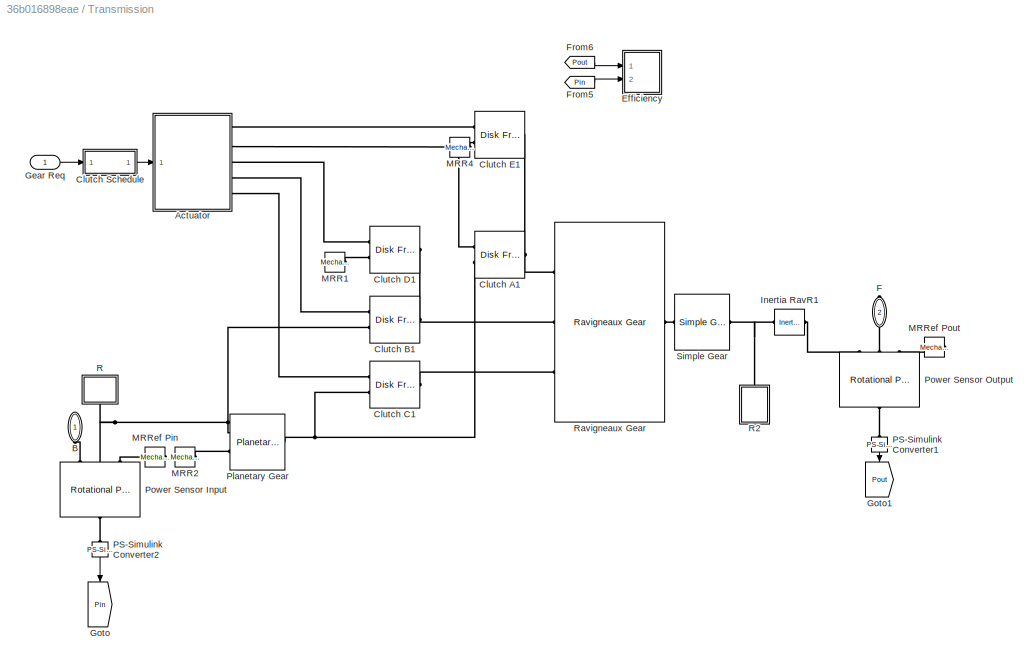
BLOCK [SubSystem] Transmission
  Ports = [1, 0, 0, 0, 0, 1, 1]
  RequestExecContextInheritance = off
BLOCK [SubSystem] Transmission/Actuator
  NameLocation = top
  Ports = [1, 0, 0, 0, 0, 0, 5]
  RequestExecContextInheritance = off
BLOCK [SubSystem] Transmission/Actuator/Actuator dynamics
  Ports = [1, 1]
  RequestExecContextInheritance = off
BLOCK [Gain] Transmission/Actuator/Actuator dynamics/Gain
  Gain = 1./b
BLOCK [Inport] Transmission/Actuator/Actuator dynamics/In
BLOCK [Integrator] Transmission/Actuator/Actuator dynamics/Integrator
  InitialCondition = [0 0 0 0 0].*b
  Ports = [1, 1]
BLOCK [Outport] Transmission/Actuator/Actuator dynamics/Out
  VectorParamsAs1DForOutWhenUnconnected = off
BLOCK [Sum] Transmission/Actuator/Actuator dynamics/Sum
  InputSameDT = on
  Inputs = |+-
  OutDataTypeStr = Inherit: Same as first input
  Ports = [2, 1]
  SaturateOnIntegerOverflow = on
BLOCK [PMIOPort] Transmission/Actuator/Cl A
  Port = 2
  Side = Right
BLOCK [PMIOPort] Transmission/Actuator/Cl B
  Port = 4
  Side = Right
BLOCK [PMIOPort] Transmission/Actuator/Cl C
  Port = 5
  Side = Right
BLOCK [PMIOPort] Transmission/Actuator/Cl D
  Port = 3
  Side = Right
BLOCK [PMIOPort] Transmission/Actuator/Cl E
  Side = Right
BLOCK [Demux] Transmission/Actuator/Demux
  Outputs = 5
  Ports = [1, 5]
BLOCK [Reference] Transmission/Actuator/Simulink-PS Converter  REF=nesl_utility/Simulink-PS
Converter
  Ports = [1, 0, 0, 0, 0, 0, 1]
  SourceBlock = nesl_utility/Simulink-PS\nConverter
  SourceProductBaseCode = SS,PW,VE
  SourceType = Simulink-PS\nConverter
BLOCK [Reference] Transmission/Actuator/Simulink-PS Converter1  REF=nesl_utility/Simulink-PS
Converter
  Ports = [1, 0, 0, 0, 0, 0, 1]
  SourceBlock = nesl_utility/Simulink-PS\nConverter
  SourceProductBaseCode = SS,PW,VE
  SourceType = Simulink-PS\nConverter
BLOCK [Reference] Transmission/Actuator/Simulink-PS Converter2  REF=nesl_utility/Simulink-PS
Converter
  Ports = [1, 0, 0, 0, 0, 0, 1]
  SourceBlock = nesl_utility/Simulink-PS\nConverter
  SourceProductBaseCode = SS,PW,VE
  SourceType = Simulink-PS\nConverter
BLOCK [Reference] Transmission/Actuator/Simulink-PS Converter3  REF=nesl_utility/Simulink-PS
Converter
  Ports = [1, 0, 0, 0, 0, 0, 1]
  SourceBlock = nesl_utility/Simulink-PS\nConverter
  SourceProductBaseCode = SS,PW,VE
  SourceType = Simulink-PS\nConverter
BLOCK [Reference] Transmission/Actuator/Simulink-PS Converter4  REF=nesl_utility/Simulink-PS
Converter
  Ports = [1, 0, 0, 0, 0, 0, 1]
  SourceBlock = nesl_utility/Simulink-PS\nConverter
  SourceProductBaseCode = SS,PW,VE
  SourceType = Simulink-PS\nConverter
BLOCK [Inport] Transmission/Actuator/State
BLOCK [Gain] Transmission/Actuator/State to pressure
  Gain = [1e7, 1e7, 1e7, 1e7,1e7]
BLOCK [PMIOPort] Transmission/B
  NameLocation = left
  Side = Left
BLOCK [Reference] Transmission/Clutch A1  REF=sdl_lib/Clutches/Disk Friction Clutch
  NameLocation = top
  Ports = [0, 0, 0, 0, 0, 2, 1]
  SourceBlock = sdl_lib/Clutches/Disk Friction Clutch
  SourceProductBaseCode = LD
  SourceType = Disk Friction Clutch
BLOCK [Reference] Transmission/Clutch B1  REF=sdl_lib/Clutches/Disk Friction Clutch
  Ports = [0, 0, 0, 0, 0, 2, 1]
  SourceBlock = sdl_lib/Clutches/Disk Friction Clutch
  SourceProductBaseCode = LD
  SourceType = Disk Friction Clutch
BLOCK [Reference] Transmission/Clutch C1  REF=sdl_lib/Clutches/Disk Friction Clutch
  Ports = [0, 0, 0, 0, 0, 2, 1]
  SourceBlock = sdl_lib/Clutches/Disk Friction Clutch
  SourceProductBaseCode = LD
  SourceType = Disk Friction Clutch
BLOCK [Reference] Transmission/Clutch D1  REF=sdl_lib/Clutches/Disk Friction Clutch
  Ports = [0, 0, 0, 0, 0, 2, 1]
  SourceBlock = sdl_lib/Clutches/Disk Friction Clutch
  SourceProductBaseCode = LD
  SourceType = Disk Friction Clutch
BLOCK [Reference] Transmission/Clutch E1  REF=sdl_lib/Clutches/Disk Friction Clutch
  NameLocation = top
  Ports = [0, 0, 0, 0, 0, 2, 1]
  SourceBlock = sdl_lib/Clutches/Disk Friction Clutch
  SourceProductBaseCode = LD
  SourceType = Disk Friction Clutch
BLOCK [SubSystem] Transmission/Clutch Schedule
  Ports = [1, 1]
  RequestExecContextInheritance = off
BLOCK [Constant] Transmission/Clutch Schedule/Constant
  Value = [0 0 1 1 0]
BLOCK [Constant] Transmission/Clutch Schedule/Constant1
  Value = [1 0 0 1 0]
BLOCK [Constant] Transmission/Clutch Schedule/Constant2
  Value = [0 0 1 1 0]
BLOCK [Constant] Transmission/Clutch Schedule/Constant3
  Value = [0 0 1 0 1]
BLOCK [Constant] Transmission/Clutch Schedule/Constant4
  Value = [1 0 1 0 0]
BLOCK [Constant] Transmission/Clutch Schedule/Constant5
  Value = [0 1 1 0 0]
BLOCK [Constant] Transmission/Clutch Schedule/Constant6
  Value = [1 1 0 0 0]
BLOCK [Constant] Transmission/Clutch Schedule/Constant7
  Value = [0 1 0 0 1]
  VectorParams1D = off
BLOCK [Inport] Transmission/Clutch Schedule/Gear
BLOCK [Rounding] Transmission/Clutch Schedule/Rounding Function
BLOCK [Saturate] Transmission/Clutch Schedule/Saturation
  LowerLimit = -1
  UpperLimit = 6
  ZeroCross = off
BLOCK [MultiPortSwitch] Transmission/Clutch Schedule/Select Clutch States
  DataPortIndices = {6,5,4,3,2,1,-1,0}
  DataPortOrder = Specify indices
  DiagnosticForDefault = None
  InputSameDT = off
  Ports = [9, 1]
  SaturateOnIntegerOverflow = off
BLOCK [Outport] Transmission/Clutch Schedule/St
  VectorParamsAs1DForOutWhenUnconnected = off
BLOCK [SubSystem] Transmission/Efficiency
  Ports = [2]
  RequestExecContextInheritance = off
BLOCK [Product] Transmission/Efficiency/Divide1
  Inputs = */
  Ports = [2, 1]
BLOCK [Mux] Transmission/Efficiency/Mux
  DisplayOption = bar
  Inputs = 2
  Ports = [2, 1]
BLOCK [Inport] Transmission/Efficiency/PIn
  Port = 2
BLOCK [Inport] Transmission/Efficiency/Pout
BLOCK [Saturate] Transmission/Efficiency/Saturation
  LowerLimit = 0.1
  UpperLimit = 100
  ZeroCross = off
BLOCK [Saturate] Transmission/Efficiency/Saturation1
  LowerLimit = -100
  UpperLimit = 100
  ZeroCross = off
BLOCK [Terminator] Transmission/Efficiency/Terminator
BLOCK [Terminator] Transmission/Efficiency/Terminator1
BLOCK [PMIOPort] Transmission/F
  NameLocation = right
  Port = 2
  Side = Right
BLOCK [From] Transmission/From5
  GotoTag = Pin
BLOCK [From] Transmission/From6
  GotoTag = Pout
BLOCK [Inport] Transmission/Gear Req
BLOCK [Goto] Transmission/Goto
  GotoTag = Pin
  NameLocation = left
BLOCK [Goto] Transmission/Goto1
  GotoTag = Pout
  NameLocation = left
BLOCK [Reference] Transmission/Inertia RavR1  REF=fl_lib/Mechanical/Rotational Elements/Inertia
  NameLocation = top
  Ports = [0, 0, 0, 0, 0, 1, 1]
  SourceBlock = fl_lib/Mechanical/Rotational Elements/Inertia
  SourceProductBaseCode = PW,SS,VE
  SourceType = Inertia
BLOCK [Reference] Transmission/MRR1  REF=fl_lib/Mechanical/Rotational Elements/Mechanical
Rotational Reference
  Ports = [0, 0, 0, 0, 0, 1]
  SourceBlock = fl_lib/Mechanical/Rotational Elements/Mechanical\nRotational Reference
  SourceProductBaseCode = PW,SS,VE
  SourceType = Mechanical\nRotational Reference
BLOCK [Reference] Transmission/MRR2  REF=fl_lib/Mechanical/Rotational Elements/Mechanical
Rotational Reference
  Ports = [0, 0, 0, 0, 0, 1]
  SourceBlock = fl_lib/Mechanical/Rotational Elements/Mechanical\nRotational Reference
  SourceProductBaseCode = PW,SS,VE
  SourceType = Mechanical\nRotational Reference
BLOCK [Reference] Transmission/MRR4  REF=fl_lib/Mechanical/Rotational Elements/Mechanical
Rotational Reference
  Ports = [0, 0, 0, 0, 0, 1]
  SourceBlock = fl_lib/Mechanical/Rotational Elements/Mechanical\nRotational Reference
  SourceProductBaseCode = PW,SS,VE
  SourceType = Mechanical\nRotational Reference
BLOCK [Reference] Transmission/MRRef Pin  REF=fl_lib/Mechanical/Rotational Elements/Mechanical
Rotational Reference
  Ports = [0, 0, 0, 0, 0, 1]
  SourceBlock = fl_lib/Mechanical/Rotational Elements/Mechanical\nRotational Reference
  SourceProductBaseCode = PW,SS,VE
  SourceType = Mechanical\nRotational Reference
BLOCK [Reference] Transmission/MRRef Pout  REF=fl_lib/Mechanical/Rotational Elements/Mechanical
Rotational Reference
  Ports = [0, 0, 0, 0, 0, 1]
  SourceBlock = fl_lib/Mechanical/Rotational Elements/Mechanical\nRotational Reference
  SourceProductBaseCode = PW,SS,VE
  SourceType = Mechanical\nRotational Reference
BLOCK [Reference] Transmission/PS-Simulink Converter1  REF=nesl_utility/PS-Simulink
Converter
  NameLocation = left
  Ports = [0, 1, 0, 0, 0, 1]
  SourceBlock = nesl_utility/PS-Simulink\nConverter
  SourceProductBaseCode = SS,PW,VE
  SourceType = PS-Simulink\nConverter
BLOCK [Reference] Transmission/PS-Simulink Converter2  REF=nesl_utility/PS-Simulink
Converter
  NameLocation = left
  Ports = [0, 1, 0, 0, 0, 1]
  SourceBlock = nesl_utility/PS-Simulink\nConverter
  SourceProductBaseCode = SS,PW,VE
  SourceType = PS-Simulink\nConverter
BLOCK [Reference] Transmission/Planetary Gear  REF=sdl_lib/Gears/Planetary Gear
  Ports = [0, 0, 0, 0, 0, 1, 2]
  SourceBlock = sdl_lib/Gears/Planetary Gear
  SourceProductBaseCode = LD
  SourceType = Planetary Gear
BLOCK [Reference] Transmission/Power Sensor Input  REF=sdl_lib/Sensors/Rotational Power
Sensor
  NameLocation = left
  Ports = [0, 0, 0, 0, 0, 3, 1]
  SourceBlock = sdl_lib/Sensors/Rotational Power\nSensor
  SourceProductBaseCode = LD
  SourceType = Rotational Power\nSensor
BLOCK [Reference] Transmission/Power Sensor Output  REF=sdl_lib/Sensors/Rotational Power
Sensor
  NameLocation = left
  Ports = [0, 0, 0, 0, 0, 3, 1]
  SourceBlock = sdl_lib/Sensors/Rotational Power\nSensor
  SourceProductBaseCode = LD
  SourceType = Rotational Power\nSensor
BLOCK [SubSystem] Transmission/R
  NameLocation = left
  Ports = [0, 0, 0, 0, 0, 1]
  RequestExecContextInheritance = off
BLOCK [PMIOPort] Transmission/R/B
  Side = Left
BLOCK [Goto] Transmission/R/Goto
  GotoTag = w_in
  TagVisibility = global
BLOCK [Reference] Transmission/R/Ideal Rotational Motion Sensor  REF=fl_lib/Mechanical/Mechanical Sensors/Ideal Rotational
Motion Sensor
  Ports = [0, 0, 0, 0, 0, 1, 3]
  SourceBlock = fl_lib/Mechanical/Mechanical Sensors/Ideal Rotational\nMotion Sensor
  SourceProductBaseCode = PW,SS,VE
  SourceType = Ideal Rotational\nMotion Sensor
BLOCK [Reference] Transmission/R/MRRef Brake C4  REF=fl_lib/Mechanical/Rotational Elements/Mechanical
Rotational Reference
  Ports = [0, 0, 0, 0, 0, 1]
  SourceBlock = fl_lib/Mechanical/Rotational Elements/Mechanical\nRotational Reference
  SourceProductBaseCode = PW,SS,VE
  SourceType = Mechanical\nRotational Reference
BLOCK [Reference] Transmission/R/PS-Simulink Converter  REF=nesl_utility/PS-Simulink
Converter
  Ports = [0, 1, 0, 0, 0, 1]
  SourceBlock = nesl_utility/PS-Simulink\nConverter
  SourceProductBaseCode = SS,PW,VE
  SourceType = PS-Simulink\nConverter
BLOCK [Terminator] Transmission/R/Terminator
BLOCK [SubSystem] Transmission/R2
  NameLocation = left
  Ports = [0, 0, 0, 0, 0, 1]
  RequestExecContextInheritance = off
BLOCK [PMIOPort] Transmission/R2/B
  Side = Left
BLOCK [Goto] Transmission/R2/Goto
  GotoTag = w_out
  TagVisibility = global
BLOCK [Reference] Transmission/R2/Ideal Rotational Motion Sensor  REF=fl_lib/Mechanical/Mechanical Sensors/Ideal Rotational
Motion Sensor
  Ports = [0, 0, 0, 0, 0, 1, 3]
  SourceBlock = fl_lib/Mechanical/Mechanical Sensors/Ideal Rotational\nMotion Sensor
  SourceProductBaseCode = PW,SS,VE
  SourceType = Ideal Rotational\nMotion Sensor
BLOCK [Reference] Transmission/R2/MRRef Brake C4  REF=fl_lib/Mechanical/Rotational Elements/Mechanical
Rotational Reference
  Ports = [0, 0, 0, 0, 0, 1]
  SourceBlock = fl_lib/Mechanical/Rotational Elements/Mechanical\nRotational Reference
  SourceProductBaseCode = PW,SS,VE
  SourceType = Mechanical\nRotational Reference
BLOCK [Reference] Transmission/R2/PS-Simulink Converter  REF=nesl_utility/PS-Simulink
Converter
  Ports = [0, 1, 0, 0, 0, 1]
  SourceBlock = nesl_utility/PS-Simulink\nConverter
  SourceProductBaseCode = SS,PW,VE
  SourceType = PS-Simulink\nConverter
BLOCK [Terminator] Transmission/R2/Terminator
BLOCK [Reference] Transmission/Ravigneaux Gear  REF=sdl_lib/Gears/Ravigneaux Gear
  Ports = [0, 0, 0, 0, 0, 3, 1]
  SourceBlock = sdl_lib/Gears/Ravigneaux Gear
  SourceProductBaseCode = LD
  SourceType = Ravigneaux Gear
BLOCK [Reference] Transmission/Simple Gear  REF=sdl_lib/Gears/Simple Gear
  Ports = [0, 0, 0, 0, 0, 1, 1]
  SourceBlock = sdl_lib/Gears/Simple Gear
  SourceProductBaseCode = LD
  SourceType = Simple Gear
BLOCK [Outport] VehSpd
BLOCK [SubSystem] Vehicle
  PortSchema = {"entries":[{"content":{"sides":[{"content":{"connectorIds":["In1","In2","In3","In4","In5","In6","In7","In8"]},"type":"ConnectorPlacement.EquallySpacedRectSide","uuid":"bcf9a296-e69e-4ad9-a4a1-d979ea5df84c"},{"content":{"connectorIds":["In9","In10"],"side":"RIGHT"},"type":"ConnectorPlacement.EquallySpacedRectSide","uuid":"3e14b290-259b-4f68-a20c-650572254037"},{"content":{"connectorIds":[],"side":...<+288ch>
  Ports = [10]
  RequestExecContextInheritance = off
BLOCK [Inport] Vehicle/FLaxleSPD
  Port = 2
BLOCK [Inport] Vehicle/FLaxleTQ
BLOCK [Inport] Vehicle/FRaxleSPD
  Port = 4
BLOCK [Inport] Vehicle/FRaxleTQ
  Port = 3
BLOCK [Reference] Vehicle/Power Accounting Bus Creator1  REF=autolibpowerinfoutils/Power Accounting Bus Creator
  Ports = [3, 1]
  SourceBlock = autolibpowerinfoutils/Power Accounting Bus Creator
  SourceProductBaseCode = PW,DR,MT,VE
  SourceType = Power Accounting Bus Creator
BLOCK [SubSystem] Vehicle/PowerAccountingVEH
  Ports = [10, 3]
  RequestExecContextInheritance = off
BLOCK [Sum] Vehicle/PowerAccountingVEH/Add
  IconShape = rectangular
  Inputs = ++++
  Ports = [4, 1]
BLOCK [Sum] Vehicle/PowerAccountingVEH/Add1
  IconShape = rectangular
  Inputs = -+
  Ports = [2, 1]
BLOCK [BusCreator] Vehicle/PowerAccountingVEH/BusCreator3
  DisplayOption = bar
  InheritFromInputs = on
  Inputs = 4
  Ports = [4, 1]
BLOCK [BusCreator] Vehicle/PowerAccountingVEH/BusCreator4
  DisplayOption = bar
  InheritFromInputs = on
  Inputs = 1
  Ports = [1, 1]
BLOCK [BusCreator] Vehicle/PowerAccountingVEH/BusCreator5
  DisplayOption = bar
  InheritFromInputs = on
  Inputs = 1
  Ports = [1, 1]
BLOCK [BusCreator] Vehicle/PowerAccountingVEH/BusCreator6
  DisplayOption = bar
  InheritFromInputs = on
  Inputs = 1
  Ports = [1, 1]
BLOCK [Inport] Vehicle/PowerAccountingVEH/FLaxleSPD
  Port = 2
BLOCK [Inport] Vehicle/PowerAccountingVEH/FLaxleTQ
BLOCK [Inport] Vehicle/PowerAccountingVEH/FRaxleSPD
  Port = 4
BLOCK [Inport] Vehicle/PowerAccountingVEH/FRaxleTQ
  Port = 3
BLOCK [Outport] Vehicle/PowerAccountingVEH/PWRstored
  Port = 3
BLOCK [Product] Vehicle/PowerAccountingVEH/Product
  Ports = [2, 1]
BLOCK [Product] Vehicle/PowerAccountingVEH/Product1
  Ports = [2, 1]
BLOCK [Product] Vehicle/PowerAccountingVEH/Product2
  Ports = [2, 1]
BLOCK [Product] Vehicle/PowerAccountingVEH/Product3
  Ports = [2, 1]
BLOCK [Product] Vehicle/PowerAccountingVEH/Product4
  Ports = [2, 1]
BLOCK [Outport] Vehicle/PowerAccountingVEH/PwrNotTrnsfrd
  Port = 2
BLOCK [Outport] Vehicle/PowerAccountingVEH/PwrTrnsfrd
BLOCK [Inport] Vehicle/PowerAccountingVEH/RLaxleSPD
  Port = 6
BLOCK [Inport] Vehicle/PowerAccountingVEH/RLaxleTQ
  Port = 5
BLOCK [Inport] Vehicle/PowerAccountingVEH/RRaxleSPD
  Port = 8
BLOCK [Inport] Vehicle/PowerAccountingVEH/RRaxleTQ
  Port = 7
BLOCK [SignalSpecification] Vehicle/PowerAccountingVEH/Signal Specification1
  Unit = W
BLOCK [SignalSpecification] Vehicle/PowerAccountingVEH/Signal Specification2
  Unit = W
BLOCK [SignalSpecification] Vehicle/PowerAccountingVEH/Signal Specification3
  Unit = W
BLOCK [SignalSpecification] Vehicle/PowerAccountingVEH/Signal Specification4
  Unit = W
BLOCK [SignalSpecification] Vehicle/PowerAccountingVEH/Signal Specification5
  Unit = W
BLOCK [SignalSpecification] Vehicle/PowerAccountingVEH/Signal Specification6
  Unit = W
BLOCK [Inport] Vehicle/PowerAccountingVEH/Vforce
  Port = 9
BLOCK [Inport] Vehicle/PowerAccountingVEH/Vspd
  Port = 10
BLOCK [Inport] Vehicle/RLaxleSPD
  Port = 6
BLOCK [Inport] Vehicle/RLaxleTQ
  Port = 5
BLOCK [Inport] Vehicle/RRaxleSPD
  Port = 8
BLOCK [Inport] Vehicle/RRaxleTQ
  Port = 7
BLOCK [Terminator] Vehicle/Terminator1
BLOCK [Inport] Vehicle/Vforce
  Port = 9
BLOCK [Inport] Vehicle/Vspd
  Port = 10
BLOCK [SubSystem] Wheels
  PortSchema = {"entries":[{"content":{"sides":[{"content":{"connectorIds":["In1","LConn1","LConn2","LConn3"]},"type":"ConnectorPlacement.EquallySpacedRectSide","uuid":"2373f445-ed1b-4d2c-a3bb-bf3082deb419"},{"content":{"connectorIds":["RConn1","RConn2"],"side":"RIGHT"},"type":"ConnectorPlacement.EquallySpacedRectSide","uuid":"86a984eb-cccb-4808-b017-21de4ccc53c5"},{"content":{"connectorIds":["LConn4","LConn5"],...<+295ch>
  Ports = [1, 0, 0, 0, 0, 5, 2]
  RequestExecContextInheritance = off
BLOCK [TransferFcn] Wheels/Actuator Lag F
  Denominator = [.05 1]
BLOCK [TransferFcn] Wheels/Actuator Lag R
  Denominator = [.05 1]
BLOCK [Reference] Wheels/Brake FL  REF=sdl_lib/Brakes & Detents/Rotational/Disc Brake
  Ports = [0, 0, 0, 0, 0, 2]
  SourceBlock = sdl_lib/Brakes & Detents/Rotational/Disc Brake
  SourceProductBaseCode = LD
  SourceType = Disc Brake
BLOCK [Reference] Wheels/Brake FR  REF=sdl_lib/Brakes & Detents/Rotational/Disc Brake
  Ports = [0, 0, 0, 0, 0, 2]
  SourceBlock = sdl_lib/Brakes & Detents/Rotational/Disc Brake
  SourceProductBaseCode = LD
  SourceType = Disc Brake
BLOCK [Reference] Wheels/Brake RL  REF=sdl_lib/Brakes & Detents/Rotational/Disc Brake
  NameLocation = top
  Ports = [0, 0, 0, 0, 0, 2]
  SourceBlock = sdl_lib/Brakes & Detents/Rotational/Disc Brake
  SourceProductBaseCode = LD
  SourceType = Disc Brake
BLOCK [Reference] Wheels/Brake RR  REF=sdl_lib/Brakes & Detents/Rotational/Disc Brake
  NameLocation = top
  Ports = [0, 0, 0, 0, 0, 2]
  SourceBlock = sdl_lib/Brakes & Detents/Rotational/Disc Brake
  SourceProductBaseCode = LD
  SourceType = Disc Brake
BLOCK [Inport] Wheels/BrakeReq
BLOCK [PMIOPort] Wheels/FL
  Port = 2
  Side = Left
BLOCK [PMIOPort] Wheels/FR
  Port = 6
  Side = Right
BLOCK [PMIOPort] Wheels/H
  Side = Left
BLOCK [PMIOPort] Wheels/NF
  Port = 5
  Side = Left
BLOCK [PMIOPort] Wheels/NR
  NameLocation = top
  Port = 4
  Side = Left
BLOCK [Reference] Wheels/PS Terminator1  REF=fl_lib/Physical Signals/Sinks/PS Terminator
  Ports = [0, 0, 0, 0, 0, 1]
  SourceBlock = fl_lib/Physical Signals/Sinks/PS Terminator
  SourceProductBaseCode = PW,SS,VE
  SourceType = PS Terminator
BLOCK [Reference] Wheels/PS Terminator2  REF=fl_lib/Physical Signals/Sinks/PS Terminator
  Ports = [0, 0, 0, 0, 0, 1]
  SourceBlock = fl_lib/Physical Signals/Sinks/PS Terminator
  SourceProductBaseCode = PW,SS,VE
  SourceType = PS Terminator
BLOCK [Reference] Wheels/PS Terminator3  REF=fl_lib/Physical Signals/Sinks/PS Terminator
  Ports = [0, 0, 0, 0, 0, 1]
  SourceBlock = fl_lib/Physical Signals/Sinks/PS Terminator
  SourceProductBaseCode = PW,SS,VE
  SourceType = PS Terminator
BLOCK [Reference] Wheels/PS Terminator4  REF=fl_lib/Physical Signals/Sinks/PS Terminator
  NameLocation = top
  Ports = [0, 0, 0, 0, 0, 1]
  SourceBlock = fl_lib/Physical Signals/Sinks/PS Terminator
  SourceProductBaseCode = PW,SS,VE
  SourceType = PS Terminator
BLOCK [Gain] Wheels/Pa_to_bar
  Gain = 1e-5
BLOCK [PMIOPort] Wheels/RL
  Port = 3
  Side = Left
BLOCK [PMIOPort] Wheels/RR
  Port = 7
  Side = Right
BLOCK [Reference] Wheels/Simulink-PS Converter1  REF=nesl_utility/Simulink-PS
Converter
  Ports = [1, 0, 0, 0, 0, 0, 1]
  SourceBlock = nesl_utility/Simulink-PS\nConverter
  SourceProductBaseCode = SS,PW,VE
  SourceType = Simulink-PS\nConverter
BLOCK [Reference] Wheels/Simulink-PS Converter2  REF=nesl_utility/Simulink-PS
Converter
  Ports = [1, 0, 0, 0, 0, 0, 1]
  SourceBlock = nesl_utility/Simulink-PS\nConverter
  SourceProductBaseCode = SS,PW,VE
  SourceType = Simulink-PS\nConverter
BLOCK [Reference] Wheels/Wheel FL  REF=sdl_lib/Tires & Vehicles/Tire (Magic Formula)
  NameLocation = top
  Ports = [0, 0, 0, 0, 0, 2, 2]
  SourceBlock = sdl_lib/Tires & Vehicles/Tire (Magic Formula)
  SourceProductBaseCode = LD
  SourceType = Tire (Magic Formula)
BLOCK [Reference] Wheels/Wheel FR  REF=sdl_lib/Tires & Vehicles/Tire (Magic Formula)
  NameLocation = top
  Ports = [0, 0, 0, 0, 0, 2, 2]
  SourceBlock = sdl_lib/Tires & Vehicles/Tire (Magic Formula)
  SourceProductBaseCode = LD
  SourceType = Tire (Magic Formula)
BLOCK [Reference] Wheels/Wheel RL  REF=sdl_lib/Tires & Vehicles/Tire (Magic Formula)
  NameLocation = top
  Ports = [0, 0, 0, 0, 0, 2, 2]
  SourceBlock = sdl_lib/Tires & Vehicles/Tire (Magic Formula)
  SourceProductBaseCode = LD
  SourceType = Tire (Magic Formula)
BLOCK [Reference] Wheels/Wheel RR  REF=sdl_lib/Tires & Vehicles/Tire (Magic Formula)
  NameLocation = top
  Ports = [0, 0, 0, 0, 0, 2, 2]
  SourceBlock = sdl_lib/Tires & Vehicles/Tire (Magic Formula)
  SourceProductBaseCode = LD
  SourceType = Tire (Magic Formula)
BLOCK [Gain] Wheels/frontBias
  Gain = .6
BLOCK [Gain] Wheels/rearBias
  Gain = .4
BLOCK [Inport] WindVel
  Port = 5
ANNOTATION (root): <copyright redacted>
ANNOTATION (root): Power Information
ANNOTATION Driveline: Port Placement Only
ANNOTATION Driveline/AWD: Port Placement Only
ANNOTATION Driveline/FWD: Port Placement Only
ANNOTATION Transmission/Clutch Schedule: 0 - Disengaged, 1 - Engaged
ANNOTATION Transmission/Clutch Schedule: Clutch Schedule
ANNOTATION Transmission/Clutch Schedule: Gear A B C D E Ratio 6 0 1 0 0 1 g2/(1+g2) 5 1 1 0 0 0 g2/(g2+1/(1+g1)) 4 0 1 1 0 0 g3(1+g1)/(g3(1+g1)-1) 3 1 0 1 0 0 (1+g1)/g1 2 0 0 1 0 1 (1+g1)(g3+g2)/(g1(1+g2)) 1 0 0 1 1 0 g3(1+g1)/g1 R 1 0 0 1 0 -g2(1+g1)/g1
ANNOTATION Transmission/Clutch Schedule: g1: Planetary ring/sun gear ratio g2: Ravigneaux ring/large sun gear ratio g3: Ravigneaux ring/small sun gear ratio
LINE BrkCmd:1 -> Wheels:1
LINE Cltch1Cmd:1 -> Cmd to Pressure:1
LINE Clutch1/ClutchSpd:1 -> Clutch1/PwrAccountingDiff:4
LINE Clutch1/ClutchTrq:1 -> Clutch1/PwrAccountingDiff:3
LINE Clutch1/EngSpd:1 -> Clutch1/PwrAccountingDiff:1
LINE Clutch1/EngTrqOut:1 -> Clutch1/PwrAccountingDiff:2
LINE Clutch1/Power Accounting Bus Creator2:1 -> Clutch1/Terminator5:1
LINE Clutch1/PwrAccountingDiff/BusCreator1:1 -> Clutch1/PwrAccountingDiff/BusCreator5:2
LINE Clutch1/PwrAccountingDiff/BusCreator3:1 -> Clutch1/PwrAccountingDiff/BusCreator5:1
LINE Clutch1/PwrAccountingDiff/BusCreator4:1 -> Clutch1/PwrAccountingDiff/PwrNotTrnsfrd:1
LINE Clutch1/PwrAccountingDiff/BusCreator5:1 -> Clutch1/PwrAccountingDiff/PwrTrnsfrd:1
LINE Clutch1/PwrAccountingDiff/BusCreator6:1 -> Clutch1/PwrAccountingDiff/PWRstored:1
LINE Clutch1/PwrAccountingDiff/ClutchSpd:1 -> Clutch1/PwrAccountingDiff/Product2:2
LINE Clutch1/PwrAccountingDiff/Constant:1 -> Clutch1/PwrAccountingDiff/Signal Specification5:1
LINE Clutch1/PwrAccountingDiff/CutchTrq:1 -> Clutch1/PwrAccountingDiff/Product2:1
LINE Clutch1/PwrAccountingDiff/EngSpd:1 -> Clutch1/PwrAccountingDiff/Product:2
LINE Clutch1/PwrAccountingDiff/EngTrqOut:1 -> Clutch1/PwrAccountingDiff/Product:1
LINE Clutch1/PwrAccountingDiff/Gain3:1 -> Clutch1/PwrAccountingDiff/Signal Specification2:1
LINE Clutch1/PwrAccountingDiff/Gain4:1 -> Clutch1/PwrAccountingDiff/BusCreator1:1
LINE Clutch1/PwrAccountingDiff/Product2:1 -> Clutch1/PwrAccountingDiff/Signal Specification6:1
LINE Clutch1/PwrAccountingDiff/Product:1 -> Clutch1/PwrAccountingDiff/Signal Specification4:1
LINE Clutch1/PwrAccountingDiff/Signal Specification2:1 -> Clutch1/PwrAccountingDiff/BusCreator4:1
NET Clutch1/PwrAccountingDiff/Signal Specification4:1 -> Clutch1/PwrAccountingDiff/BusCreator3:1, Clutch1/PwrAccountingDiff/Subtract1:1
LINE Clutch1/PwrAccountingDiff/Signal Specification5:1 -> Clutch1/PwrAccountingDiff/BusCreator6:1
NET Clutch1/PwrAccountingDiff/Signal Specification6:1 -> Clutch1/PwrAccountingDiff/Gain4:1, Clutch1/PwrAccountingDiff/Subtract1:2
LINE Clutch1/PwrAccountingDiff/Subtract1:1 -> Clutch1/PwrAccountingDiff/Gain3:1
LINE Clutch1/PwrAccountingDiff:1 -> Clutch1/Power Accounting Bus Creator2:1
LINE Clutch1/PwrAccountingDiff:2 -> Clutch1/Power Accounting Bus Creator2:2
LINE Clutch1/PwrAccountingDiff:3 -> Clutch1/Power Accounting Bus Creator2:3
NET Cmd to Pressure:1 -> Goto1:1, Simulink-PS Converter1:1
LINE Differentrial and Compliance/DiffSpd:1 -> Differentrial and Compliance/PwrAccountingDiff:2
LINE Differentrial and Compliance/DiffTrq:1 -> Differentrial and Compliance/PwrAccountingDiff:1
LINE Differentrial and Compliance/FLaxleSPD:1 -> Differentrial and Compliance/PwrAccountingDiff:4
LINE Differentrial and Compliance/FLaxleTQ:1 -> Differentrial and Compliance/PwrAccountingDiff:3
LINE Differentrial and Compliance/FRaxleSPD:1 -> Differentrial and Compliance/PwrAccountingDiff:6
LINE Differentrial and Compliance/FRaxleTQ:1 -> Differentrial and Compliance/PwrAccountingDiff:5
LINE Differentrial and Compliance/Power Accounting Bus Creator1:1 -> Differentrial and Compliance/Terminator2:1
LINE Differentrial and Compliance/PwrAccountingDiff/BusCreator1:1 -> Differentrial and Compliance/PwrAccountingDiff/BusCreator5:2
LINE Differentrial and Compliance/PwrAccountingDiff/BusCreator3:1 -> Differentrial and Compliance/PwrAccountingDiff/BusCreator5:1
LINE Differentrial and Compliance/PwrAccountingDiff/BusCreator4:1 -> Differentrial and Compliance/PwrAccountingDiff/PwrNotTrnsfrd:1
LINE Differentrial and Compliance/PwrAccountingDiff/BusCreator5:1 -> Differentrial and Compliance/PwrAccountingDiff/PwrTrnsfrd:1
LINE Differentrial and Compliance/PwrAccountingDiff/BusCreator6:1 -> Differentrial and Compliance/PwrAccountingDiff/PWRstored:1
LINE Differentrial and Compliance/PwrAccountingDiff/Constant:1 -> Differentrial and Compliance/PwrAccountingDiff/Signal Specification5:1
LINE Differentrial and Compliance/PwrAccountingDiff/DiffSpd:1 -> Differentrial and Compliance/PwrAccountingDiff/Product:2
LINE Differentrial and Compliance/PwrAccountingDiff/DiffTrq:1 -> Differentrial and Compliance/PwrAccountingDiff/Product:1
LINE Differentrial and Compliance/PwrAccountingDiff/FLaxleSPD:1 -> Differentrial and Compliance/PwrAccountingDiff/Product2:2
LINE Differentrial and Compliance/PwrAccountingDiff/FLaxleTQ:1 -> Differentrial and Compliance/PwrAccountingDiff/Product2:1
LINE Differentrial and Compliance/PwrAccountingDiff/FRaxleSPD:1 -> Differentrial and Compliance/PwrAccountingDiff/Product4:2
LINE Differentrial and Compliance/PwrAccountingDiff/FRaxleTQ:1 -> Differentrial and Compliance/PwrAccountingDiff/Product4:1
LINE Differentrial and Compliance/PwrAccountingDiff/Gain1:1 -> Differentrial and Compliance/PwrAccountingDiff/BusCreator1:2
LINE Differentrial and Compliance/PwrAccountingDiff/Gain2:1 -> Differentrial and Compliance/PwrAccountingDiff/BusCreator1:3
LINE Differentrial and Compliance/PwrAccountingDiff/Gain3:1 -> Differentrial and Compliance/PwrAccountingDiff/Signal Specification2:1
LINE Differentrial and Compliance/PwrAccountingDiff/Gain4:1 -> Differentrial and Compliance/PwrAccountingDiff/BusCreator1:1
LINE Differentrial and Compliance/PwrAccountingDiff/Gain5:1 -> Differentrial and Compliance/PwrAccountingDiff/BusCreator1:4
LINE Differentrial and Compliance/PwrAccountingDiff/Product1:1 -> Differentrial and Compliance/PwrAccountingDiff/Signal Specification3:1
LINE Differentrial and Compliance/PwrAccountingDiff/Product2:1 -> Differentrial and Compliance/PwrAccountingDiff/Signal Specification6:1
LINE Differentrial and Compliance/PwrAccountingDiff/Product3:1 -> Differentrial and Compliance/PwrAccountingDiff/Signal Specification7:1
LINE Differentrial and Compliance/PwrAccountingDiff/Product4:1 -> Differentrial and Compliance/PwrAccountingDiff/Signal Specification1:1
LINE Differentrial and Compliance/PwrAccountingDiff/Product:1 -> Differentrial and Compliance/PwrAccountingDiff/Signal Specification4:1
LINE Differentrial and Compliance/PwrAccountingDiff/RLaxleSPD:1 -> Differentrial and Compliance/PwrAccountingDiff/Product1:2
LINE Differentrial and Compliance/PwrAccountingDiff/RLaxleTQ:1 -> Differentrial and Compliance/PwrAccountingDiff/Product1:1
LINE Differentrial and Compliance/PwrAccountingDiff/RRaxleSPD:1 -> Differentrial and Compliance/PwrAccountingDiff/Product3:2
LINE Differentrial and Compliance/PwrAccountingDiff/RRaxleTQ:1 -> Differentrial and Compliance/PwrAccountingDiff/Product3:1
NET Differentrial and Compliance/PwrAccountingDiff/Signal Specification1:1 -> Differentrial and Compliance/PwrAccountingDiff/Gain1:1, Differentrial and Compliance/PwrAccountingDiff/Subtract1:3
LINE Differentrial and Compliance/PwrAccountingDiff/Signal Specification2:1 -> Differentrial and Compliance/PwrAccountingDiff/BusCreator4:1
NET Differentrial and Compliance/PwrAccountingDiff/Signal Specification3:1 -> Differentrial and Compliance/PwrAccountingDiff/Gain2:1, Differentrial and Compliance/PwrAccountingDiff/Subtract1:4
NET Differentrial and Compliance/PwrAccountingDiff/Signal Specification4:1 -> Differentrial and Compliance/PwrAccountingDiff/BusCreator3:1, Differentrial and Compliance/PwrAccountingDiff/Subtract1:1
LINE Differentrial and Compliance/PwrAccountingDiff/Signal Specification5:1 -> Differentrial and Compliance/PwrAccountingDiff/BusCreator6:1
NET Differentrial and Compliance/PwrAccountingDiff/Signal Specification6:1 -> Differentrial and Compliance/PwrAccountingDiff/Gain4:1, Differentrial and Compliance/PwrAccountingDiff/Subtract1:2
NET Differentrial and Compliance/PwrAccountingDiff/Signal Specification7:1 -> Differentrial and Compliance/PwrAccountingDiff/Gain5:1, Differentrial and Compliance/PwrAccountingDiff/Subtract1:5
LINE Differentrial and Compliance/PwrAccountingDiff/Subtract1:1 -> Differentrial and Compliance/PwrAccountingDiff/Gain3:1
LINE Differentrial and Compliance/PwrAccountingDiff:1 -> Differentrial and Compliance/Power Accounting Bus Creator1:1
LINE Differentrial and Compliance/PwrAccountingDiff:2 -> Differentrial and Compliance/Power Accounting Bus Creator1:2
LINE Differentrial and Compliance/PwrAccountingDiff:3 -> Differentrial and Compliance/Power Accounting Bus Creator1:3
LINE Differentrial and Compliance/RLaxleSPD:1 -> Differentrial and Compliance/PwrAccountingDiff:8
LINE Differentrial and Compliance/RLaxleTQ:1 -> Differentrial and Compliance/PwrAccountingDiff:7
LINE Differentrial and Compliance/RRaxleSPD:1 -> Differentrial and Compliance/PwrAccountingDiff:10
LINE Differentrial and Compliance/RRaxleTQ:1 -> Differentrial and Compliance/PwrAccountingDiff:9
LINE Driveline/AWD/Subsystem/PS-Simulink Converter3:1 -> Driveline/AWD/Subsystem/Saturation1:1
LINE Driveline/AWD/Subsystem/PS-Simulink Converter6:1 -> Driveline/AWD/Subsystem/FRTrq:1
LINE Driveline/AWD/Subsystem/Saturation1:1 -> Driveline/AWD/Subsystem/FRSpd:1
LINE Driveline/AWD/Subsystem1/PS-Simulink Converter3:1 -> Driveline/AWD/Subsystem1/Saturation1:1
LINE Driveline/AWD/Subsystem1/PS-Simulink Converter6:1 -> Driveline/AWD/Subsystem1/FLTrq:1
LINE Driveline/AWD/Subsystem1/Saturation1:1 -> Driveline/AWD/Subsystem1/FLSpd:1
LINE Driveline/AWD/Subsystem1:1 -> Driveline/AWD/FLaxleTQ:1
LINE Driveline/AWD/Subsystem1:2 -> Driveline/AWD/FLaxleSPD:1
LINE Driveline/AWD/Subsystem2/PS-Simulink Converter3:1 -> Driveline/AWD/Subsystem2/Saturation1:1
LINE Driveline/AWD/Subsystem2/PS-Simulink Converter6:1 -> Driveline/AWD/Subsystem2/RLTrq:1
LINE Driveline/AWD/Subsystem2/Saturation1:1 -> Driveline/AWD/Subsystem2/RLSpd:1
LINE Driveline/AWD/Subsystem2:1 -> Driveline/AWD/RLaxleTQ:1
LINE Driveline/AWD/Subsystem2:2 -> Driveline/AWD/RLaxleSPD:1
LINE Driveline/AWD/Subsystem3/PS-Simulink Converter3:1 -> Driveline/AWD/Subsystem3/Saturation1:1
LINE Driveline/AWD/Subsystem3/PS-Simulink Converter6:1 -> Driveline/AWD/Subsystem3/RRTrq:1
LINE Driveline/AWD/Subsystem3/Saturation1:1 -> Driveline/AWD/Subsystem3/RRSpd:1
LINE Driveline/AWD/Subsystem3:1 -> Driveline/AWD/RRaxleTQ:1
LINE Driveline/AWD/Subsystem3:2 -> Driveline/AWD/RRaxleSPD:1
LINE Driveline/AWD/Subsystem:1 -> Driveline/AWD/FRaxleTQ:1
LINE Driveline/AWD/Subsystem:2 -> Driveline/AWD/FRaxleSPD:1
LINE Driveline/FWD/Ground4:1 -> Driveline/FWD/RLaxleTQ:1
LINE Driveline/FWD/Ground5:1 -> Driveline/FWD/RLaxleSPD:1
LINE Driveline/FWD/Ground6:1 -> Driveline/FWD/RRaxleTQ:1
LINE Driveline/FWD/Ground7:1 -> Driveline/FWD/RRaxleSPD:1
LINE Driveline/FWD/Subsystem/PS-Simulink Converter3:1 -> Driveline/FWD/Subsystem/Saturation1:1
LINE Driveline/FWD/Subsystem/PS-Simulink Converter6:1 -> Driveline/FWD/Subsystem/FRTrq:1
LINE Driveline/FWD/Subsystem/Saturation1:1 -> Driveline/FWD/Subsystem/FRSpd:1
LINE Driveline/FWD/Subsystem1/PS-Simulink Converter3:1 -> Driveline/FWD/Subsystem1/Saturation1:1
LINE Driveline/FWD/Subsystem1/PS-Simulink Converter6:1 -> Driveline/FWD/Subsystem1/FRTrq:1
LINE Driveline/FWD/Subsystem1/Saturation1:1 -> Driveline/FWD/Subsystem1/FRSpd:1
LINE Driveline/FWD/Subsystem1:1 -> Driveline/FWD/FLaxleTQ:1
LINE Driveline/FWD/Subsystem1:2 -> Driveline/FWD/FLaxleSPD:1
LINE Driveline/FWD/Subsystem:1 -> Driveline/FWD/FRaxleTQ:1
LINE Driveline/FWD/Subsystem:2 -> Driveline/FWD/FRaxleSPD:1
LINE Driveline:1 -> Goto12:1
LINE Driveline:2 -> Goto13:1
LINE Driveline:3 -> Goto14:1
LINE Driveline:4 -> Goto15:1
LINE Driveline:5 -> Goto16:1
LINE Driveline:6 -> Goto19:1
LINE Driveline:7 -> Goto10:1
LINE Driveline:8 -> Goto11:1
NET EngTrq:1 -> Goto20:1, Simulink-PS Converter:1
NET Floor:1 -> Gear Shift:1, Transmission:1
LINE From10:1 -> Differentrial and Compliance:3
LINE From11:1 -> Differentrial and Compliance:4
LINE From12:1 -> Differentrial and Compliance:1
LINE From13:1 -> Differentrial and Compliance:2
LINE From14:1 -> Differentrial and Compliance:5
LINE From15:1 -> Differentrial and Compliance:6
LINE From16:1 -> Differentrial and Compliance:8
LINE From17:1 -> Differentrial and Compliance:7
LINE From18:1 -> Ideal Fixed gear Transmission:2
LINE From19:1 -> Clutch1:4
LINE From1:1 -> Sense Clutch State:1
LINE From20:1 -> Clutch1:3
LINE From21:1 -> Ideal Fixed gear Transmission:1
LINE From22:1 -> Lockup Clutch Control:3
LINE From23:1 -> Clutch1:1
LINE From24:1 -> Vehicle:5
LINE From25:1 -> Clutch1:2
LINE From26:1 -> Vehicle:8
LINE From27:1 -> Ideal Fixed gear Transmission:4
LINE From28:1 -> Ideal Fixed gear Transmission:3
LINE From29:1 -> Differentrial and Compliance:10
LINE From2:1 -> Sense Clutch State:2
LINE From30:1 -> Differentrial and Compliance:9
LINE From31:1 -> Vehicle:7
LINE From32:1 -> Vehicle:4
LINE From33:1 -> Vehicle:3
LINE From34:1 -> Vehicle:1
LINE From35:1 -> Vehicle:2
LINE From36:1 -> Vehicle:9
LINE From37:1 -> Vehicle:10
LINE From38:1 -> Vehicle:6
LINE From3:1 -> Torque Converter and Lockup Clutch:2
LINE From4:1 -> Sense Clutch State:3
LINE From6:1 -> Torque Converter and Lockup Clutch:1
NET From7:1 -> Torque Converter and Lockup Clutch:3, Torque Converter and Lockup Clutch:4
LINE From8:1 -> Torque Converter and Lockup Clutch:6
LINE From9:1 -> Torque Converter and Lockup Clutch:5
LINE From:1 -> Lockup Clutch Control:2
LINE Gear Shift/1-D Lookup Table:1 -> Gear Shift/Transfer Fcn:1
LINE Gear Shift/Abs:1 -> Gear Shift/Divide2:1
LINE Gear Shift/Compare To Constant:1 -> Gear Shift/Compare To Zero:1
LINE Gear Shift/Compare To Zero:1 -> Gear Shift/Switch:2
LINE Gear Shift/Delay:1 -> Gear Shift/Switch:3
NET Gear Shift/Divide1:1 -> Gear Shift/Saturation2:1, Gear Shift/Subtract:2
LINE Gear Shift/Divide2:1 -> Gear Shift/Gain:1
LINE Gear Shift/From8:1 -> Gear Shift/Divide1:1
LINE Gear Shift/From9:1 -> Gear Shift/Saturation:1
LINE Gear Shift/Gain:1 -> Gear Shift/Compare To Constant:1
NET Gear Shift/Req:1 -> Gear Shift/1-D Lookup Table:1, Gear Shift/Switch:1
LINE Gear Shift/Saturation2:1 -> Gear Shift/Divide2:2
LINE Gear Shift/Saturation:1 -> Gear Shift/Divide1:2
LINE Gear Shift/Subtract:1 -> Gear Shift/Abs:1
NET Gear Shift/Switch:1 -> Gear Shift/Delay:1, Gear Shift/Gear:1
LINE Gear Shift/Transfer Fcn:1 -> Gear Shift/Subtract:1
NET Gear Shift:1 -> Lockup Clutch Control:1, TransGear:1
LINE GearCmd:1 -> Floor:1
LINE Grade:1 -> Simulink-PS Converter2:1
LINE Ideal Fixed gear Transmission/DiffSpd:1 -> Ideal Fixed gear Transmission/PwrAccountingDiff:4
LINE Ideal Fixed gear Transmission/DiffTrq:1 -> Ideal Fixed gear Transmission/PwrAccountingDiff:3
LINE Ideal Fixed gear Transmission/Power Accounting Bus Creator2:1 -> Ideal Fixed gear Transmission/Terminator5:1
LINE Ideal Fixed gear Transmission/PwrAccountingDiff/BusCreator1:1 -> Ideal Fixed gear Transmission/PwrAccountingDiff/BusCreator5:2
LINE Ideal Fixed gear Transmission/PwrAccountingDiff/BusCreator3:1 -> Ideal Fixed gear Transmission/PwrAccountingDiff/BusCreator5:1
LINE Ideal Fixed gear Transmission/PwrAccountingDiff/BusCreator4:1 -> Ideal Fixed gear Transmission/PwrAccountingDiff/PwrNotTrnsfrd:1
LINE Ideal Fixed gear Transmission/PwrAccountingDiff/BusCreator5:1 -> Ideal Fixed gear Transmission/PwrAccountingDiff/PwrTrnsfrd:1
LINE Ideal Fixed gear Transmission/PwrAccountingDiff/BusCreator6:1 -> Ideal Fixed gear Transmission/PwrAccountingDiff/PWRstored:1
LINE Ideal Fixed gear Transmission/PwrAccountingDiff/Constant:1 -> Ideal Fixed gear Transmission/PwrAccountingDiff/Signal Specification5:1
LINE Ideal Fixed gear Transmission/PwrAccountingDiff/DiffSpd:1 -> Ideal Fixed gear Transmission/PwrAccountingDiff/Product2:2
LINE Ideal Fixed gear Transmission/PwrAccountingDiff/DiffTrq:1 -> Ideal Fixed gear Transmission/PwrAccountingDiff/Product2:1
LINE Ideal Fixed gear Transmission/PwrAccountingDiff/Gain3:1 -> Ideal Fixed gear Transmission/PwrAccountingDiff/Signal Specification2:1
LINE Ideal Fixed gear Transmission/PwrAccountingDiff/Gain4:1 -> Ideal Fixed gear Transmission/PwrAccountingDiff/BusCreator1:1
LINE Ideal Fixed gear Transmission/PwrAccountingDiff/Product2:1 -> Ideal Fixed gear Transmission/PwrAccountingDiff/Signal Specification6:1
LINE Ideal Fixed gear Transmission/PwrAccountingDiff/Product:1 -> Ideal Fixed gear Transmission/PwrAccountingDiff/Signal Specification4:1
LINE Ideal Fixed gear Transmission/PwrAccountingDiff/Signal Specification2:1 -> Ideal Fixed gear Transmission/PwrAccountingDiff/BusCreator4:1
NET Ideal Fixed gear Transmission/PwrAccountingDiff/Signal Specification4:1 -> Ideal Fixed gear Transmission/PwrAccountingDiff/BusCreator3:1, Ideal Fixed gear Transmission/PwrAccountingDiff/Subtract1:1
LINE Ideal Fixed gear Transmission/PwrAccountingDiff/Signal Specification5:1 -> Ideal Fixed gear Transmission/PwrAccountingDiff/BusCreator6:1
NET Ideal Fixed gear Transmission/PwrAccountingDiff/Signal Specification6:1 -> Ideal Fixed gear Transmission/PwrAccountingDiff/Gain4:1, Ideal Fixed gear Transmission/PwrAccountingDiff/Subtract1:2
LINE Ideal Fixed gear Transmission/PwrAccountingDiff/Subtract1:1 -> Ideal Fixed gear Transmission/PwrAccountingDiff/Gain3:1
LINE Ideal Fixed gear Transmission/PwrAccountingDiff/TCSPD:1 -> Ideal Fixed gear Transmission/PwrAccountingDiff/Product:2
LINE Ideal Fixed gear Transmission/PwrAccountingDiff/TCTQ:1 -> Ideal Fixed gear Transmission/PwrAccountingDiff/Product:1
LINE Ideal Fixed gear Transmission/PwrAccountingDiff:1 -> Ideal Fixed gear Transmission/Power Accounting Bus Creator2:1
LINE Ideal Fixed gear Transmission/PwrAccountingDiff:2 -> Ideal Fixed gear Transmission/Power Accounting Bus Creator2:2
LINE Ideal Fixed gear Transmission/PwrAccountingDiff:3 -> Ideal Fixed gear Transmission/Power Accounting Bus Creator2:3
LINE Ideal Fixed gear Transmission/TurbSpd:1 -> Ideal Fixed gear Transmission/PwrAccountingDiff:2
LINE Ideal Fixed gear Transmission/TurbTrq:1 -> Ideal Fixed gear Transmission/PwrAccountingDiff:1
LINE Lockup Clutch Control/AND1:1 -> Lockup Clutch Control/OR:2
NET Lockup Clutch Control/AND:1 -> Lockup Clutch Control/Data Type Conversion:1, Lockup Clutch Control/OR:1
LINE Lockup Clutch Control/Compare To Constant1:1 -> Lockup Clutch Control/AND:1
LINE Lockup Clutch Control/Compare To Constant2:1 -> Lockup Clutch Control/AND1:2
LINE Lockup Clutch Control/Compare To Constant3:1 -> Lockup Clutch Control/AND1:1
LINE Lockup Clutch Control/Compare To Constant:1 -> Lockup Clutch Control/AND:2
LINE Lockup Clutch Control/Constant1:1 -> Lockup Clutch Control/Switch:3
LINE Lockup Clutch Control/Constant2:1 -> Lockup Clutch Control/Switch:1
LINE Lockup Clutch Control/Data Type Conversion:1 -> Lockup Clutch Control/Clutch2:1
LINE Lockup Clutch Control/Gear:1 -> Lockup Clutch Control/Compare To Constant1:1
LINE Lockup Clutch Control/OR:1 -> Lockup Clutch Control/Switch:2
LINE Lockup Clutch Control/Switch:1 -> Lockup Clutch Control/Transfer Fcn1:1
NET Lockup Clutch Control/Transfer Fcn1:1 -> Lockup Clutch Control/Compare To Constant2:1, Lockup Clutch Control/Transfer Fcn:1
LINE Lockup Clutch Control/Transfer Fcn:1 -> Lockup Clutch Control/LU_pr:1
LINE Lockup Clutch Control/wMot:1 -> Lockup Clutch Control/Compare To Constant3:1
LINE Lockup Clutch Control/xdot:1 -> Lockup Clutch Control/Compare To Constant:1
LINE Lockup Clutch Control:1 -> Cltch2State:1
LINE Lockup Clutch Control:2 -> Simulink-PS Converter5:1
NET MotTrq:1 -> Goto9:1, Simulink-PS Converter4:1
NET PS-Simulink Converter:1 -> Goto2:1, VehSpd:1
LINE Sense Clutch State/AND:1 -> Sense Clutch State/Cl1:1
LINE Sense Clutch State/Compare To Zero:1 -> Sense Clutch State/AND:1
LINE Sense Clutch State/Saturation1:1 -> Sense Clutch State/AND:2
LINE Sense Clutch State/Subtract:1 -> Sense Clutch State/Saturation1:1
LINE Sense Clutch State/p:1 -> Sense Clutch State/Compare To Zero:1
LINE Sense Clutch State/wE:1 -> Sense Clutch State/Subtract:2
LINE Sense Clutch State/wM:1 -> Sense Clutch State/Subtract:1
LINE Sense Clutch State:1 -> Cltch1State:1
LINE Sensing Engine/PS-Simulink Converter1:1 -> Sensing Engine/Saturation:1
LINE Sensing Engine/Saturation:1 -> Sensing Engine/w:1
NET Sensing Engine:1 -> EngSpd:1, Goto5:1
LINE Sensor1/PS-Simulink Converter2:1 -> Sensor1/Trq:1
LINE Sensor1/PS-Simulink Converter3:1 -> Sensor1/Saturation1:1
LINE Sensor1/Saturation1:1 -> Sensor1/Spd:1
LINE Sensor1:1 -> Goto6:1
NET Sensor1:2 -> Goto4:1, MotSpd:1
LINE Sensor2/PS-Simulink Converter2:1 -> Sensor2/Trq:1
LINE Sensor2/PS-Simulink Converter3:1 -> Sensor2/Saturation1:1
LINE Sensor2/Saturation1:1 -> Sensor2/Spd:1
LINE Sensor2:1 -> Goto8:1
LINE Sensor2:2 -> Goto7:1
LINE Sensor3/DiffTQ:1 -> Sensor3/Trq:1
LINE Sensor3/PS-Simulink Converter:1 -> Sensor3/Spd:1
LINE Sensor3:1 -> Goto18:1
LINE Sensor3:2 -> Goto17:1
LINE Sensor4/Force:1 -> Sensor4/VEHforce:1
LINE Sensor4/SPD:1 -> Sensor4/VEVspd:1
LINE Sensor4:1 -> Goto21:1
LINE Sensor4:2 -> Goto:1
LINE StartTrq:1 -> Terminator:1
LINE Torque Converter and Lockup Clutch/ClutchSpd:1 -> Torque Converter and Lockup Clutch/PwrAccountingDiff:1
LINE Torque Converter and Lockup Clutch/ClutchTrq:1 -> Torque Converter and Lockup Clutch/PwrAccountingDiff:2
LINE Torque Converter and Lockup Clutch/MtrSpd:1 -> Torque Converter and Lockup Clutch/PwrAccountingDiff:6
LINE Torque Converter and Lockup Clutch/MtrTrq:1 -> Torque Converter and Lockup Clutch/PwrAccountingDiff:4
LINE Torque Converter and Lockup Clutch/Power Accounting Bus Creator2:1 -> Torque Converter and Lockup Clutch/Terminator5:1
LINE Torque Converter and Lockup Clutch/PwrAccountingDiff/BusCreator1:1 -> Torque Converter and Lockup Clutch/PwrAccountingDiff/BusCreator5:2
LINE Torque Converter and Lockup Clutch/PwrAccountingDiff/BusCreator3:1 -> Torque Converter and Lockup Clutch/PwrAccountingDiff/BusCreator5:1
LINE Torque Converter and Lockup Clutch/PwrAccountingDiff/BusCreator4:1 -> Torque Converter and Lockup Clutch/PwrAccountingDiff/PwrNotTrnsfrd:1
LINE Torque Converter and Lockup Clutch/PwrAccountingDiff/BusCreator5:1 -> Torque Converter and Lockup Clutch/PwrAccountingDiff/PwrTrnsfrd:1
LINE Torque Converter and Lockup Clutch/PwrAccountingDiff/BusCreator6:1 -> Torque Converter and Lockup Clutch/PwrAccountingDiff/PWRstored:1
LINE Torque Converter and Lockup Clutch/PwrAccountingDiff/ClutchSpd:1 -> Torque Converter and Lockup Clutch/PwrAccountingDiff/Product:2
LINE Torque Converter and Lockup Clutch/PwrAccountingDiff/ClutchTrq:1 -> Torque Converter and Lockup Clutch/PwrAccountingDiff/Product:1
LINE Torque Converter and Lockup Clutch/PwrAccountingDiff/Constant:1 -> Torque Converter and Lockup Clutch/PwrAccountingDiff/Signal Specification5:1
LINE Torque Converter and Lockup Clutch/PwrAccountingDiff/Gain3:1 -> Torque Converter and Lockup Clutch/PwrAccountingDiff/Signal Specification2:1
LINE Torque Converter and Lockup Clutch/PwrAccountingDiff/Gain4:1 -> Torque Converter and Lockup Clutch/PwrAccountingDiff/BusCreator1:1
LINE Torque Converter and Lockup Clutch/PwrAccountingDiff/MtrSpd:1 -> Torque Converter and Lockup Clutch/PwrAccountingDiff/Product1:2
LINE Torque Converter and Lockup Clutch/PwrAccountingDiff/MtrTrq:1 -> Torque Converter and Lockup Clutch/PwrAccountingDiff/Product1:1
LINE Torque Converter and Lockup Clutch/PwrAccountingDiff/Product1:1 -> Torque Converter and Lockup Clutch/PwrAccountingDiff/Signal Specification1:1
LINE Torque Converter and Lockup Clutch/PwrAccountingDiff/Product2:1 -> Torque Converter and Lockup Clutch/PwrAccountingDiff/Signal Specification6:1
LINE Torque Converter and Lockup Clutch/PwrAccountingDiff/Product:1 -> Torque Converter and Lockup Clutch/PwrAccountingDiff/Signal Specification4:1
NET Torque Converter and Lockup Clutch/PwrAccountingDiff/Signal Specification1:1 -> Torque Converter and Lockup Clutch/PwrAccountingDiff/BusCreator3:2, Torque Converter and Lockup Clutch/PwrAccountingDiff/Subtract1:2
LINE Torque Converter and Lockup Clutch/PwrAccountingDiff/Signal Specification2:1 -> Torque Converter and Lockup Clutch/PwrAccountingDiff/BusCreator4:1
NET Torque Converter and Lockup Clutch/PwrAccountingDiff/Signal Specification4:1 -> Torque Converter and Lockup Clutch/PwrAccountingDiff/BusCreator3:1, Torque Converter and Lockup Clutch/PwrAccountingDiff/Subtract1:1
LINE Torque Converter and Lockup Clutch/PwrAccountingDiff/Signal Specification5:1 -> Torque Converter and Lockup Clutch/PwrAccountingDiff/BusCreator6:1
NET Torque Converter and Lockup Clutch/PwrAccountingDiff/Signal Specification6:1 -> Torque Converter and Lockup Clutch/PwrAccountingDiff/Gain4:1, Torque Converter and Lockup Clutch/PwrAccountingDiff/Subtract1:3
LINE Torque Converter and Lockup Clutch/PwrAccountingDiff/Subtract1:1 -> Torque Converter and Lockup Clutch/PwrAccountingDiff/Gain3:1
LINE Torque Converter and Lockup Clutch/PwrAccountingDiff/TurbSpd:1 -> Torque Converter and Lockup Clutch/PwrAccountingDiff/Product2:2
LINE Torque Converter and Lockup Clutch/PwrAccountingDiff/TurbTrq:1 -> Torque Converter and Lockup Clutch/PwrAccountingDiff/Product2:1
LINE Torque Converter and Lockup Clutch/PwrAccountingDiff:1 -> Torque Converter and Lockup Clutch/Power Accounting Bus Creator2:1
LINE Torque Converter and Lockup Clutch/PwrAccountingDiff:2 -> Torque Converter and Lockup Clutch/Power Accounting Bus Creator2:2
LINE Torque Converter and Lockup Clutch/PwrAccountingDiff:3 -> Torque Converter and Lockup Clutch/Power Accounting Bus Creator2:3
LINE Torque Converter and Lockup Clutch/TurbSpd:1 -> Torque Converter and Lockup Clutch/PwrAccountingDiff:5
LINE Torque Converter and Lockup Clutch/TurbTrq:1 -> Torque Converter and Lockup Clutch/PwrAccountingDiff:3
NET Transmission/Actuator/Actuator dynamics/Gain:1 -> Transmission/Actuator/Actuator dynamics/Out:1, Transmission/Actuator/Actuator dynamics/Sum:2
LINE Transmission/Actuator/Actuator dynamics/In:1 -> Transmission/Actuator/Actuator dynamics/Sum:1
LINE Transmission/Actuator/Actuator dynamics/Integrator:1 -> Transmission/Actuator/Actuator dynamics/Gain:1
LINE Transmission/Actuator/Actuator dynamics/Sum:1 -> Transmission/Actuator/Actuator dynamics/Integrator:1
LINE Transmission/Actuator/Actuator dynamics:1 -> Transmission/Actuator/State to pressure:1
LINE Transmission/Actuator/Demux:1 -> Transmission/Actuator/Simulink-PS Converter:1
LINE Transmission/Actuator/Demux:2 -> Transmission/Actuator/Simulink-PS Converter1:1
LINE Transmission/Actuator/Demux:3 -> Transmission/Actuator/Simulink-PS Converter2:1
LINE Transmission/Actuator/Demux:4 -> Transmission/Actuator/Simulink-PS Converter3:1
LINE Transmission/Actuator/Demux:5 -> Transmission/Actuator/Simulink-PS Converter4:1
LINE Transmission/Actuator/State to pressure:1 -> Transmission/Actuator/Demux:1
LINE Transmission/Actuator/State:1 -> Transmission/Actuator/Actuator dynamics:1
LINE Transmission/Clutch Schedule/Constant1:1 -> Transmission/Clutch Schedule/Select Clutch States:8
LINE Transmission/Clutch Schedule/Constant2:1 -> Transmission/Clutch Schedule/Select Clutch States:7
LINE Transmission/Clutch Schedule/Constant3:1 -> Transmission/Clutch Schedule/Select Clutch States:6
LINE Transmission/Clutch Schedule/Constant4:1 -> Transmission/Clutch Schedule/Select Clutch States:5
LINE Transmission/Clutch Schedule/Constant5:1 -> Transmission/Clutch Schedule/Select Clutch States:4
LINE Transmission/Clutch Schedule/Constant6:1 -> Transmission/Clutch Schedule/Select Clutch States:3
LINE Transmission/Clutch Schedule/Constant7:1 -> Transmission/Clutch Schedule/Select Clutch States:2
LINE Transmission/Clutch Schedule/Constant:1 -> Transmission/Clutch Schedule/Select Clutch States:9
LINE Transmission/Clutch Schedule/Gear:1 -> Transmission/Clutch Schedule/Saturation:1
LINE Transmission/Clutch Schedule/Rounding Function:1 -> Transmission/Clutch Schedule/Select Clutch States:1
LINE Transmission/Clutch Schedule/Saturation:1 -> Transmission/Clutch Schedule/Rounding Function:1
LINE Transmission/Clutch Schedule/Select Clutch States:1 -> Transmission/Clutch Schedule/St:1
LINE Transmission/Clutch Schedule:1 -> Transmission/Actuator:1
LINE Transmission/Efficiency/Divide1:1 -> Transmission/Efficiency/Terminator1:1
LINE Transmission/Efficiency/Mux:1 -> Transmission/Efficiency/Terminator:1
LINE Transmission/Efficiency/PIn:1 -> Transmission/Efficiency/Saturation:1
LINE Transmission/Efficiency/Pout:1 -> Transmission/Efficiency/Saturation1:1
NET Transmission/Efficiency/Saturation1:1 -> Transmission/Efficiency/Divide1:1, Transmission/Efficiency/Mux:1
NET Transmission/Efficiency/Saturation:1 -> Transmission/Efficiency/Divide1:2, Transmission/Efficiency/Mux:2
LINE Transmission/From5:1 -> Transmission/Efficiency:2
LINE Transmission/From6:1 -> Transmission/Efficiency:1
LINE Transmission/Gear Req:1 -> Transmission/Clutch Schedule:1
LINE Transmission/PS-Simulink Converter1:1 -> Transmission/Goto1:1
LINE Transmission/PS-Simulink Converter2:1 -> Transmission/Goto:1
NET Transmission/R/PS-Simulink Converter:1 -> Transmission/R/Goto:1, Transmission/R/Terminator:1
NET Transmission/R2/PS-Simulink Converter:1 -> Transmission/R2/Goto:1, Transmission/R2/Terminator:1
LINE Vehicle/FLaxleSPD:1 -> Vehicle/PowerAccountingVEH:2
LINE Vehicle/FLaxleTQ:1 -> Vehicle/PowerAccountingVEH:1
LINE Vehicle/FRaxleSPD:1 -> Vehicle/PowerAccountingVEH:4
LINE Vehicle/FRaxleTQ:1 -> Vehicle/PowerAccountingVEH:3
LINE Vehicle/Power Accounting Bus Creator1:1 -> Vehicle/Terminator1:1
LINE Vehicle/PowerAccountingVEH/Add1:1 -> Vehicle/PowerAccountingVEH/Signal Specification6:1
LINE Vehicle/PowerAccountingVEH/Add:1 -> Vehicle/PowerAccountingVEH/Add1:1
LINE Vehicle/PowerAccountingVEH/BusCreator3:1 -> Vehicle/PowerAccountingVEH/BusCreator5:1
LINE Vehicle/PowerAccountingVEH/BusCreator4:1 -> Vehicle/PowerAccountingVEH/PwrNotTrnsfrd:1
LINE Vehicle/PowerAccountingVEH/BusCreator5:1 -> Vehicle/PowerAccountingVEH/PwrTrnsfrd:1
LINE Vehicle/PowerAccountingVEH/BusCreator6:1 -> Vehicle/PowerAccountingVEH/PWRstored:1
LINE Vehicle/PowerAccountingVEH/FLaxleSPD:1 -> Vehicle/PowerAccountingVEH/Product4:2
LINE Vehicle/PowerAccountingVEH/FLaxleTQ:1 -> Vehicle/PowerAccountingVEH/Product4:1
LINE Vehicle/PowerAccountingVEH/FRaxleSPD:1 -> Vehicle/PowerAccountingVEH/Product3:2
LINE Vehicle/PowerAccountingVEH/FRaxleTQ:1 -> Vehicle/PowerAccountingVEH/Product3:1
LINE Vehicle/PowerAccountingVEH/Product1:1 -> Vehicle/PowerAccountingVEH/Signal Specification3:1
LINE Vehicle/PowerAccountingVEH/Product2:1 -> Vehicle/PowerAccountingVEH/Signal Specification5:1
LINE Vehicle/PowerAccountingVEH/Product3:1 -> Vehicle/PowerAccountingVEH/Signal Specification1:1
LINE Vehicle/PowerAccountingVEH/Product4:1 -> Vehicle/PowerAccountingVEH/Signal Specification2:1
LINE Vehicle/PowerAccountingVEH/Product:1 -> Vehicle/PowerAccountingVEH/Signal Specification4:1
LINE Vehicle/PowerAccountingVEH/RLaxleSPD:1 -> Vehicle/PowerAccountingVEH/Product:2
LINE Vehicle/PowerAccountingVEH/RLaxleTQ:1 -> Vehicle/PowerAccountingVEH/Product:1
LINE Vehicle/PowerAccountingVEH/RRaxleSPD:1 -> Vehicle/PowerAccountingVEH/Product1:2
LINE Vehicle/PowerAccountingVEH/RRaxleTQ:1 -> Vehicle/PowerAccountingVEH/Product1:1
NET Vehicle/PowerAccountingVEH/Signal Specification1:1 -> Vehicle/PowerAccountingVEH/Add:2, Vehicle/PowerAccountingVEH/BusCreator3:2
NET Vehicle/PowerAccountingVEH/Signal Specification2:1 -> Vehicle/PowerAccountingVEH/Add:1, Vehicle/PowerAccountingVEH/BusCreator3:1
NET Vehicle/PowerAccountingVEH/Signal Specification3:1 -> Vehicle/PowerAccountingVEH/Add:4, Vehicle/PowerAccountingVEH/BusCreator3:4
NET Vehicle/PowerAccountingVEH/Signal Specification4:1 -> Vehicle/PowerAccountingVEH/Add:3, Vehicle/PowerAccountingVEH/BusCreator3:3
NET Vehicle/PowerAccountingVEH/Signal Specification5:1 -> Vehicle/PowerAccountingVEH/Add1:2, Vehicle/PowerAccountingVEH/BusCreator6:1
LINE Vehicle/PowerAccountingVEH/Signal Specification6:1 -> Vehicle/PowerAccountingVEH/BusCreator4:1
LINE Vehicle/PowerAccountingVEH/Vforce:1 -> Vehicle/PowerAccountingVEH/Product2:1
LINE Vehicle/PowerAccountingVEH/Vspd:1 -> Vehicle/PowerAccountingVEH/Product2:2
LINE Vehicle/PowerAccountingVEH:1 -> Vehicle/Power Accounting Bus Creator1:1
LINE Vehicle/PowerAccountingVEH:2 -> Vehicle/Power Accounting Bus Creator1:2
LINE Vehicle/PowerAccountingVEH:3 -> Vehicle/Power Accounting Bus Creator1:3
LINE Vehicle/RLaxleSPD:1 -> Vehicle/PowerAccountingVEH:6
LINE Vehicle/RLaxleTQ:1 -> Vehicle/PowerAccountingVEH:5
LINE Vehicle/RRaxleSPD:1 -> Vehicle/PowerAccountingVEH:8
LINE Vehicle/RRaxleTQ:1 -> Vehicle/PowerAccountingVEH:7
LINE Vehicle/Vforce:1 -> Vehicle/PowerAccountingVEH:9
LINE Vehicle/Vspd:1 -> Vehicle/PowerAccountingVEH:10
LINE Wheels/Actuator Lag F:1 -> Wheels/Simulink-PS Converter1:1
LINE Wheels/Actuator Lag R:1 -> Wheels/Simulink-PS Converter2:1
LINE Wheels/BrakeReq:1 -> Wheels/Pa_to_bar:1
NET Wheels/Pa_to_bar:1 -> Wheels/frontBias:1, Wheels/rearBias:1
LINE Wheels/frontBias:1 -> Wheels/Actuator Lag F:1
LINE Wheels/rearBias:1 -> Wheels/Actuator Lag R:1
LINE WindVel:1 -> Simulink-PS Converter3:1
PLINE Body:LConn1 -- Sensor4:LConn1
PLINE Body:LConn2 -- PS-Simulink Converter:LConn1
PLINE Body:LConn3 -- Simulink-PS Converter3:RConn1
PLINE Body:RConn1 -- Wheels:LConn4
PLINE Body:RConn2 -- Wheels:LConn5
PLINE Body:RConn3 -- Simulink-PS Converter2:RConn1
PLINE Clutch1 Coupling:LConn1 -- Simulink-PS Converter1:RConn1
PNET net1: Clutch1 Coupling:LConn2 -- Sensing Engine:LConn1 -- Shaft Inertia Engine:RConn1
PLINE Clutch1 Coupling:RConn1 -- Sensor1:LConn1
PNET net2: Driveline/AWD/DiffIn 2:RConn1 -- Driveline/AWD/DiffIn:RConn1 -- Driveline/AWD/Front Differential:LConn1 -- Driveline/AWD/Rear Differential:LConn1
PLINE Driveline/AWD/FL:RConn1 -- Driveline/AWD/Subsystem1:RConn1
PLINE Driveline/AWD/FR:RConn1 -- Driveline/AWD/Subsystem:RConn1
PLINE Driveline/AWD/Front Differential:RConn1 -- Driveline/AWD/Subsystem1:LConn1
PLINE Driveline/AWD/Front Differential:RConn2 -- Driveline/AWD/Subsystem:LConn1
PLINE Driveline/AWD/RL:RConn1 -- Driveline/AWD/Subsystem2:RConn1
PLINE Driveline/AWD/RR:RConn1 -- Driveline/AWD/Subsystem3:RConn1
PLINE Driveline/AWD/Rear Differential:RConn1 -- Driveline/AWD/Subsystem2:LConn1
PLINE Driveline/AWD/Rear Differential:RConn2 -- Driveline/AWD/Subsystem3:LConn1
PLINE Driveline/AWD/Subsystem/C:RConn1 -- Driveline/AWD/Subsystem/Ideal Torque Sensor2:RConn1
PNET net3: Driveline/AWD/Subsystem/Ideal Rotational Motion Sensor1:LConn1 -- Driveline/AWD/Subsystem/Ideal Torque Sensor2:LConn1 -- Driveline/AWD/Subsystem/R:RConn1
PLINE Driveline/AWD/Subsystem/Ideal Rotational Motion Sensor1:RConn1 -- Driveline/AWD/Subsystem/Mechanical Rotational Reference1:LConn1
PLINE Driveline/AWD/Subsystem/Ideal Rotational Motion Sensor1:RConn2 -- Driveline/AWD/Subsystem/PS-Simulink Converter3:LConn1
PLINE Driveline/AWD/Subsystem/Ideal Rotational Motion Sensor1:RConn3 -- Driveline/AWD/Subsystem/PS Terminator1:LConn1
PLINE Driveline/AWD/Subsystem/Ideal Torque Sensor2:RConn2 -- Driveline/AWD/Subsystem/PS-Simulink Converter6:LConn1
PLINE Driveline/AWD/Subsystem1/C:RConn1 -- Driveline/AWD/Subsystem1/Ideal Torque Sensor2:RConn1
PNET net4: Driveline/AWD/Subsystem1/Ideal Rotational Motion Sensor1:LConn1 -- Driveline/AWD/Subsystem1/Ideal Torque Sensor2:LConn1 -- Driveline/AWD/Subsystem1/R:RConn1
PLINE Driveline/AWD/Subsystem1/Ideal Rotational Motion Sensor1:RConn1 -- Driveline/AWD/Subsystem1/Mechanical Rotational Reference1:LConn1
PLINE Driveline/AWD/Subsystem1/Ideal Rotational Motion Sensor1:RConn2 -- Driveline/AWD/Subsystem1/PS-Simulink Converter3:LConn1
PLINE Driveline/AWD/Subsystem1/Ideal Rotational Motion Sensor1:RConn3 -- Driveline/AWD/Subsystem1/PS Terminator1:LConn1
PLINE Driveline/AWD/Subsystem1/Ideal Torque Sensor2:RConn2 -- Driveline/AWD/Subsystem1/PS-Simulink Converter6:LConn1
PLINE Driveline/AWD/Subsystem2/C:RConn1 -- Driveline/AWD/Subsystem2/Ideal Torque Sensor2:RConn1
PNET net5: Driveline/AWD/Subsystem2/Ideal Rotational Motion Sensor1:LConn1 -- Driveline/AWD/Subsystem2/Ideal Torque Sensor2:LConn1 -- Driveline/AWD/Subsystem2/R:RConn1
PLINE Driveline/AWD/Subsystem2/Ideal Rotational Motion Sensor1:RConn1 -- Driveline/AWD/Subsystem2/Mechanical Rotational Reference1:LConn1
PLINE Driveline/AWD/Subsystem2/Ideal Rotational Motion Sensor1:RConn2 -- Driveline/AWD/Subsystem2/PS-Simulink Converter3:LConn1
PLINE Driveline/AWD/Subsystem2/Ideal Rotational Motion Sensor1:RConn3 -- Driveline/AWD/Subsystem2/PS Terminator1:LConn1
PLINE Driveline/AWD/Subsystem2/Ideal Torque Sensor2:RConn2 -- Driveline/AWD/Subsystem2/PS-Simulink Converter6:LConn1
PLINE Driveline/AWD/Subsystem3/C:RConn1 -- Driveline/AWD/Subsystem3/Ideal Torque Sensor2:RConn1
PNET net6: Driveline/AWD/Subsystem3/Ideal Rotational Motion Sensor1:LConn1 -- Driveline/AWD/Subsystem3/Ideal Torque Sensor2:LConn1 -- Driveline/AWD/Subsystem3/R:RConn1
PLINE Driveline/AWD/Subsystem3/Ideal Rotational Motion Sensor1:RConn1 -- Driveline/AWD/Subsystem3/Mechanical Rotational Reference1:LConn1
PLINE Driveline/AWD/Subsystem3/Ideal Rotational Motion Sensor1:RConn2 -- Driveline/AWD/Subsystem3/PS-Simulink Converter3:LConn1
PLINE Driveline/AWD/Subsystem3/Ideal Rotational Motion Sensor1:RConn3 -- Driveline/AWD/Subsystem3/PS Terminator1:LConn1
PLINE Driveline/AWD/Subsystem3/Ideal Torque Sensor2:RConn2 -- Driveline/AWD/Subsystem3/PS-Simulink Converter6:LConn1
PNET net7: Driveline/FWD/DiffIn 2:RConn1 -- Driveline/FWD/DiffIn:RConn1 -- Driveline/FWD/Front Differential:LConn1
PLINE Driveline/FWD/FL:RConn1 -- Driveline/FWD/Subsystem1:RConn1
PLINE Driveline/FWD/FR:RConn1 -- Driveline/FWD/Subsystem:RConn1
PLINE Driveline/FWD/Free End RL:LConn1 -- Driveline/FWD/RL:RConn1
PLINE Driveline/FWD/Free End RR:LConn1 -- Driveline/FWD/RR:RConn1
PLINE Driveline/FWD/Front Differential:RConn1 -- Driveline/FWD/Subsystem1:LConn1
PLINE Driveline/FWD/Front Differential:RConn2 -- Driveline/FWD/Subsystem:LConn1
PLINE Driveline/FWD/Subsystem/C:RConn1 -- Driveline/FWD/Subsystem/Ideal Torque Sensor2:RConn1
PNET net8: Driveline/FWD/Subsystem/Ideal Rotational Motion Sensor1:LConn1 -- Driveline/FWD/Subsystem/Ideal Torque Sensor2:LConn1 -- Driveline/FWD/Subsystem/R:RConn1
PLINE Driveline/FWD/Subsystem/Ideal Rotational Motion Sensor1:RConn1 -- Driveline/FWD/Subsystem/Mechanical Rotational Reference1:LConn1
PLINE Driveline/FWD/Subsystem/Ideal Rotational Motion Sensor1:RConn2 -- Driveline/FWD/Subsystem/PS-Simulink Converter3:LConn1
PLINE Driveline/FWD/Subsystem/Ideal Rotational Motion Sensor1:RConn3 -- Driveline/FWD/Subsystem/PS Terminator1:LConn1
PLINE Driveline/FWD/Subsystem/Ideal Torque Sensor2:RConn2 -- Driveline/FWD/Subsystem/PS-Simulink Converter6:LConn1
PLINE Driveline/FWD/Subsystem1/C:RConn1 -- Driveline/FWD/Subsystem1/Ideal Torque Sensor2:RConn1
PNET net9: Driveline/FWD/Subsystem1/Ideal Rotational Motion Sensor1:LConn1 -- Driveline/FWD/Subsystem1/Ideal Torque Sensor2:LConn1 -- Driveline/FWD/Subsystem1/R:RConn1
PLINE Driveline/FWD/Subsystem1/Ideal Rotational Motion Sensor1:RConn1 -- Driveline/FWD/Subsystem1/Mechanical Rotational Reference1:LConn1
PLINE Driveline/FWD/Subsystem1/Ideal Rotational Motion Sensor1:RConn2 -- Driveline/FWD/Subsystem1/PS-Simulink Converter3:LConn1
PLINE Driveline/FWD/Subsystem1/Ideal Rotational Motion Sensor1:RConn3 -- Driveline/FWD/Subsystem1/PS Terminator1:LConn1
PLINE Driveline/FWD/Subsystem1/Ideal Torque Sensor2:RConn2 -- Driveline/FWD/Subsystem1/PS-Simulink Converter6:LConn1
PLINE Driveline:LConn1 -- Wheels:LConn3
PLINE Driveline:LConn2 -- Wheels:LConn2
PLINE Driveline:LConn3 -- Intermediate shaft3:RConn1
PLINE Driveline:RConn1 -- Wheels:RConn2
PLINE Driveline:RConn2 -- Wheels:RConn1
PLINE Engine Torque:LConn1 -- Shaft Inertia Engine:LConn1
PLINE Engine Torque:RConn1 -- Simulink-PS Converter:RConn1
PLINE Engine Torque:RConn2 -- Mechanical Rotational Reference1:LConn1
PLINE Intermediate shaft3:LConn1 -- Sensor3:RConn1
PLINE Lockup Clutch:LConn1 -- Simulink-PS Converter5:RConn1
PNET net10: Lockup Clutch:LConn2 -- Shaft Inertia Impeller :RConn1 -- Torque Converter:LConn1
PNET net11: Lockup Clutch:RConn1 -- Shaft Inertia Turbine:LConn1 -- Torque Converter:RConn1
PLINE Mechanical Rotational Reference3:LConn1 -- Motor Torque:RConn2
PNET net12: Motor Torque:LConn1 -- Sensor1:RConn1 -- Shaft Inertia Impeller :LConn1
PLINE Motor Torque:RConn1 -- Simulink-PS Converter4:RConn1
PLINE Sensing Engine/Ideal Rotational Motion Sensor:LConn1 -- Sensing Engine/R:RConn1
PLINE Sensing Engine/Ideal Rotational Motion Sensor:RConn1 -- Sensing Engine/Mechanical Rotational Reference:LConn1
PLINE Sensing Engine/Ideal Rotational Motion Sensor:RConn2 -- Sensing Engine/PS-Simulink Converter1:LConn1
PLINE Sensing Engine/Ideal Rotational Motion Sensor:RConn3 -- Sensing Engine/PS Terminator:LConn1
PLINE Sensor1/C:RConn1 -- Sensor1/Ideal Torque Sensor1:RConn1
PNET net13: Sensor1/Ideal Rotational Motion Sensor1:LConn1 -- Sensor1/Ideal Torque Sensor1:LConn1 -- Sensor1/R:RConn1
PLINE Sensor1/Ideal Rotational Motion Sensor1:RConn1 -- Sensor1/Mechanical Rotational Reference3:LConn1
PLINE Sensor1/Ideal Rotational Motion Sensor1:RConn2 -- Sensor1/PS-Simulink Converter3:LConn1
PLINE Sensor1/Ideal Rotational Motion Sensor1:RConn3 -- Sensor1/PS Terminator1:LConn1
PLINE Sensor1/Ideal Torque Sensor1:RConn2 -- Sensor1/PS-Simulink Converter2:LConn1
PLINE Sensor2/C:RConn1 -- Sensor2/Ideal Torque Sensor1:RConn1
PNET net14: Sensor2/Ideal Rotational Motion Sensor1:LConn1 -- Sensor2/Ideal Torque Sensor1:LConn1 -- Sensor2/R:RConn1
PLINE Sensor2/Ideal Rotational Motion Sensor1:RConn1 -- Sensor2/Mechanical Rotational Reference3:LConn1
PLINE Sensor2/Ideal Rotational Motion Sensor1:RConn2 -- Sensor2/PS-Simulink Converter3:LConn1
PLINE Sensor2/Ideal Rotational Motion Sensor1:RConn3 -- Sensor2/PS Terminator1:LConn1
PLINE Sensor2/Ideal Torque Sensor1:RConn2 -- Sensor2/PS-Simulink Converter2:LConn1
PLINE Sensor2:LConn1 -- Shaft Inertia Turbine:RConn1
PLINE Sensor2:RConn1 -- Transmission:LConn1
PLINE Sensor3/C:RConn1 -- Sensor3/Ideal Torque Sensor:RConn1
PLINE Sensor3/DiffTQ:LConn1 -- Sensor3/Ideal Torque Sensor:RConn2
PNET net15: Sensor3/Ideal Rotational Motion Sensor:LConn1 -- Sensor3/Ideal Torque Sensor:LConn1 -- Sensor3/R:RConn1
PLINE Sensor3/Ideal Rotational Motion Sensor:RConn1 -- Sensor3/Mechanical Rotational Reference:LConn1
PLINE Sensor3/Ideal Rotational Motion Sensor:RConn2 -- Sensor3/PS-Simulink Converter:LConn1
PLINE Sensor3/Ideal Rotational Motion Sensor:RConn3 -- Sensor3/PS Terminator:LConn1
PNET net16: Sensor3:LConn1 -- Solver Configuration1:RConn1 -- Transmission:RConn1
PLINE Sensor4/Force:LConn1 -- Sensor4/Ideal Force Sensor:RConn2
PNET net17: Sensor4/H:RConn1 -- Sensor4/Ideal Force Sensor:LConn1 -- Sensor4/Ideal Translational Motion Sensor:LConn1
PLINE Sensor4/Ideal Force Sensor:RConn1 -- Sensor4/Out:RConn1
PLINE Sensor4/Ideal Translational Motion Sensor:RConn1 -- Sensor4/Mechanical Translational Reference:LConn1
PLINE Sensor4/Ideal Translational Motion Sensor:RConn2 -- Sensor4/SPD:LConn1
PLINE Sensor4:RConn1 -- Wheels:LConn1
PLINE Transmission/Actuator/Cl A:RConn1 -- Transmission/Actuator/Simulink-PS Converter:RConn1
PLINE Transmission/Actuator/Cl B:RConn1 -- Transmission/Actuator/Simulink-PS Converter1:RConn1
PLINE Transmission/Actuator/Cl C:RConn1 -- Transmission/Actuator/Simulink-PS Converter2:RConn1
PLINE Transmission/Actuator/Cl D:RConn1 -- Transmission/Actuator/Simulink-PS Converter3:RConn1
PLINE Transmission/Actuator/Cl E:RConn1 -- Transmission/Actuator/Simulink-PS Converter4:RConn1
PLINE Transmission/Actuator:RConn1 -- Transmission/Clutch E1:LConn1
PLINE Transmission/Actuator:RConn2 -- Transmission/Clutch A1:LConn1
PLINE Transmission/Actuator:RConn3 -- Transmission/Clutch D1:LConn1
PLINE Transmission/Actuator:RConn4 -- Transmission/Clutch B1:LConn1
PLINE Transmission/Actuator:RConn5 -- Transmission/Clutch C1:LConn1
PLINE Transmission/B:RConn1 -- Transmission/Power Sensor Input:LConn1
PNET net18: Transmission/Clutch A1:LConn2 -- Transmission/Clutch C1:LConn2 -- Transmission/Planetary Gear:LConn1
PNET net19: Transmission/Clutch A1:RConn1 -- Transmission/Clutch E1:RConn1 -- Transmission/Ravigneaux Gear:LConn1
PNET net20: Transmission/Clutch B1:LConn2 -- Transmission/Planetary Gear:RConn1 -- Transmission/Power Sensor Input:LConn2 -- Transmission/R:LConn1
PNET net21: Transmission/Clutch B1:RConn1 -- Transmission/Clutch D1:RConn1 -- Transmission/Ravigneaux Gear:LConn2
PLINE Transmission/Clutch C1:RConn1 -- Transmission/Ravigneaux Gear:LConn3
PLINE Transmission/Clutch D1:LConn2 -- Transmission/MRR1:LConn1
PLINE Transmission/Clutch E1:LConn2 -- Transmission/MRR4:LConn1
PLINE Transmission/F:RConn1 -- Transmission/Power Sensor Output:LConn2
PNET net22: Transmission/Inertia RavR1:LConn1 -- Transmission/R2:LConn1 -- Transmission/Simple Gear:RConn1
PLINE Transmission/Inertia RavR1:RConn1 -- Transmission/Power Sensor Output:LConn1
PLINE Transmission/MRR2:LConn1 -- Transmission/Planetary Gear:RConn2
PLINE Transmission/MRRef Pin:LConn1 -- Transmission/Power Sensor Input:LConn3
PLINE Transmission/MRRef Pout:LConn1 -- Transmission/Power Sensor Output:LConn3
PLINE Transmission/PS-Simulink Converter1:LConn1 -- Transmission/Power Sensor Output:RConn1
PLINE Transmission/PS-Simulink Converter2:LConn1 -- Transmission/Power Sensor Input:RConn1
PLINE Transmission/R/B:RConn1 -- Transmission/R/Ideal Rotational Motion Sensor:LConn1
PLINE Transmission/R/Ideal Rotational Motion Sensor:RConn1 -- Transmission/R/MRRef Brake C4:LConn1
PLINE Transmission/R/Ideal Rotational Motion Sensor:RConn2 -- Transmission/R/PS-Simulink Converter:LConn1
PLINE Transmission/R2/B:RConn1 -- Transmission/R2/Ideal Rotational Motion Sensor:LConn1
PLINE Transmission/R2/Ideal Rotational Motion Sensor:RConn1 -- Transmission/R2/MRRef Brake C4:LConn1
PLINE Transmission/R2/Ideal Rotational Motion Sensor:RConn2 -- Transmission/R2/PS-Simulink Converter:LConn1
PLINE Transmission/Ravigneaux Gear:RConn1 -- Transmission/Simple Gear:LConn1
PNET net23: Wheels/Brake FL:LConn1 -- Wheels/Brake FR:LConn1 -- Wheels/Simulink-PS Converter1:RConn1
PNET net24: Wheels/Brake FL:LConn2 -- Wheels/FL:RConn1 -- Wheels/Wheel FL:LConn2
PNET net25: Wheels/Brake FR:LConn2 -- Wheels/FR:RConn1 -- Wheels/Wheel FR:LConn2
PNET net26: Wheels/Brake RL:LConn1 -- Wheels/Brake RR:LConn1 -- Wheels/Simulink-PS Converter2:RConn1
PNET net27: Wheels/Brake RL:LConn2 -- Wheels/RL:RConn1 -- Wheels/Wheel RL:LConn2
PNET net28: Wheels/Brake RR:LConn2 -- Wheels/RR:RConn1 -- Wheels/Wheel RR:LConn2
PNET net29: Wheels/H:RConn1 -- Wheels/Wheel FL:RConn2 -- Wheels/Wheel FR:RConn2 -- Wheels/Wheel RL:RConn2 -- Wheels/Wheel RR:RConn2
PNET net30: Wheels/NF:RConn1 -- Wheels/Wheel FL:LConn1 -- Wheels/Wheel FR:LConn1
PNET net31: Wheels/NR:RConn1 -- Wheels/Wheel RL:LConn1 -- Wheels/Wheel RR:LConn1
PLINE Wheels/PS Terminator1:LConn1 -- Wheels/Wheel FL:RConn1
PLINE Wheels/PS Terminator2:LConn1 -- Wheels/Wheel RR:RConn1
PLINE Wheels/PS Terminator3:LConn1 -- Wheels/Wheel RL:RConn1
PLINE Wheels/PS Terminator4:LConn1 -- Wheels/Wheel FR:RConn1
note: NET lines group one-source signal fan-out (src -> all destinations, sorted); 1:1 wires keep LINE; PNET lines group multi-terminal physical nets as a canonical sorted terminal list (undirected conserving connections); 2-terminal nets keep the pairwise PLINE form
